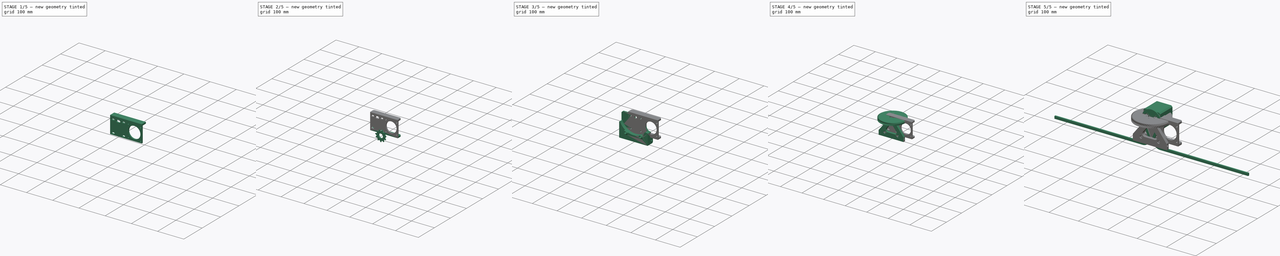
[diagram: build sequence overview — one tinted view per stage of 5, left to right]
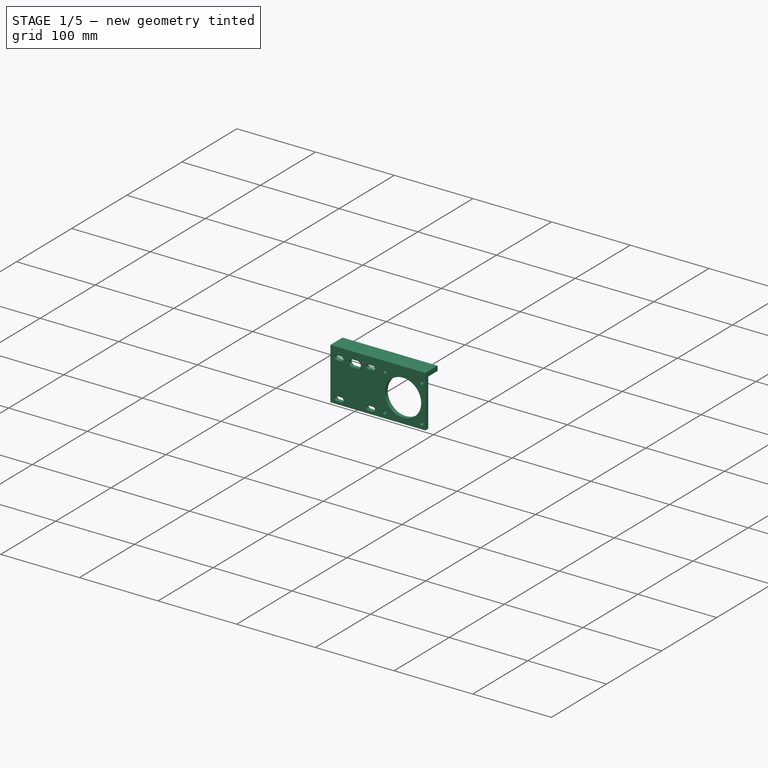
[diagram: stage 1 of 5 — iso view after this stage's code; geometry added in this stage tinted green]
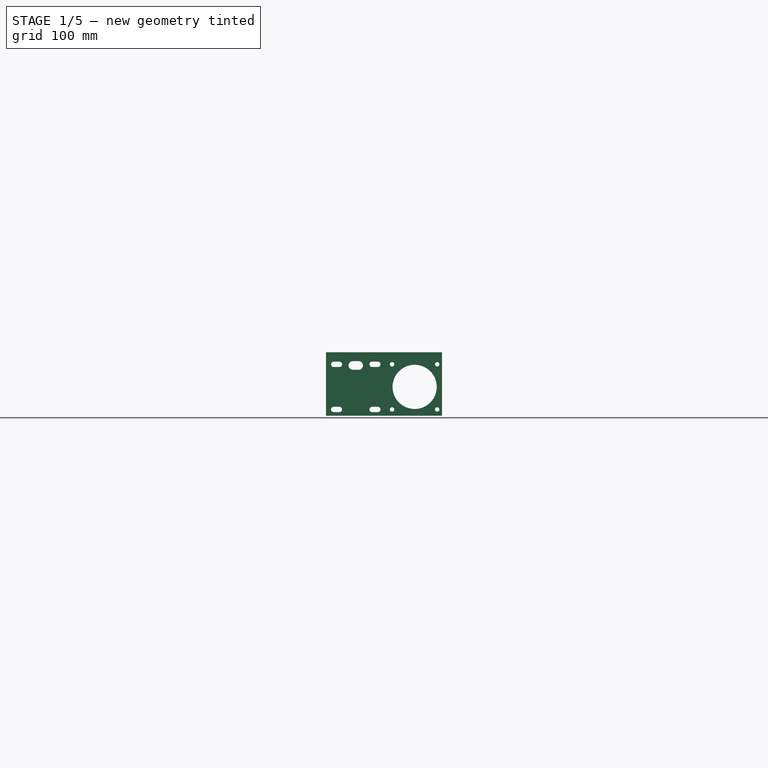
[diagram: stage 1 of 5 — front view after this stage's code; geometry added in this stage tinted green]
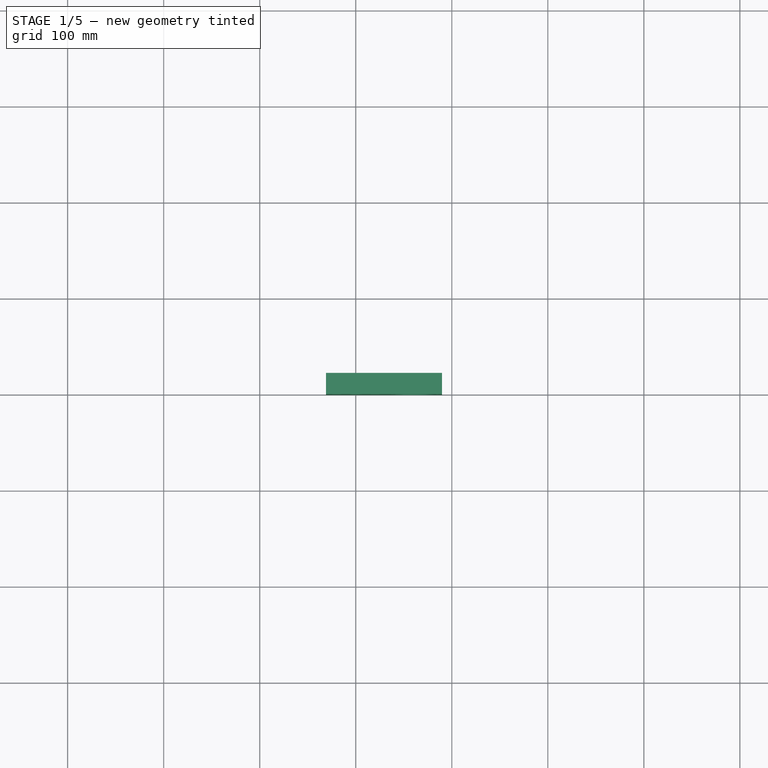
[diagram: stage 1 of 5 — top view after this stage's code; geometry added in this stage tinted green]
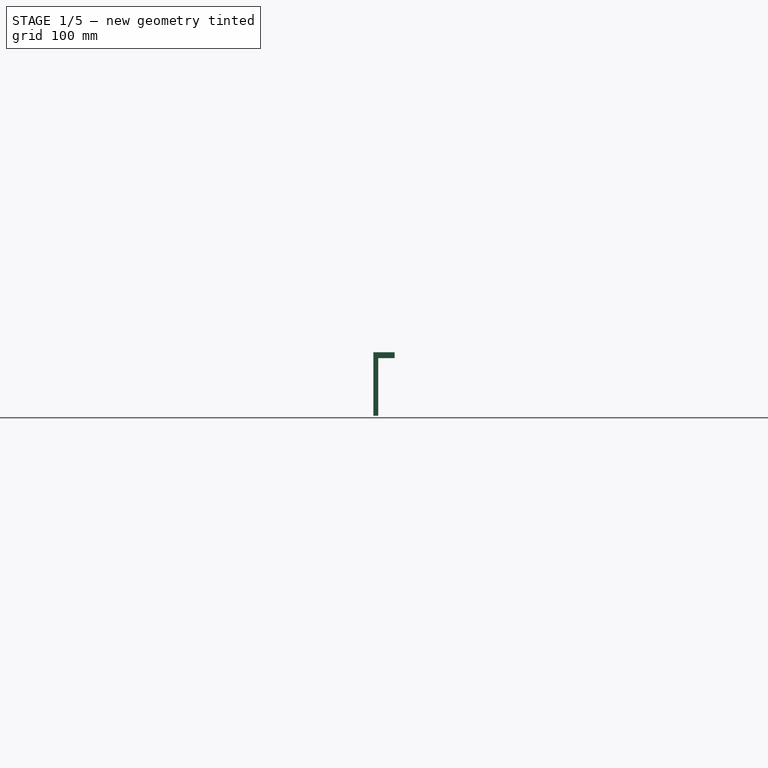
[diagram: stage 1 of 5 — right view after this stage's code; geometry added in this stage tinted green]
FCSTD DOCUMENT  (FreeCAD 1.0R39285 (Git))
Label: Bicycle-chain-drive-for-fabricatable-axis-6.0
License: Creative Commons Attribution-ShareAlike 4.0
LicenseURL: https://creativecommons.org/licenses/by-sa/4.0/
objects: Sketcher::SketchObject×45, PartDesign::Pad×18, PartDesign::Pocket×14, PartDesign::Chamfer×13, PartDesign::Body×12, PartDesign::Hole×7, PartDesign::Fillet×6, PartDesign::Groove×3, PartDesign::PolarPattern×3, App::Part×3, App::VarSet×2, PartDesign::FeaturePython×2, Part::Part2DObjectPython×2, Part::FeaturePython×2, PartDesign::Mirrored×1, PartDesign::Revolution×1, PartDesign::SubShapeBinder×1, PartDesign::FeatureBase×1
note: 307 computed .brp shape members not serialized (recipe doc carries the construction recipe); baked Part::Feature solids carry a one-line shape summary decoded from their .brp
EXTERNAL_REF file=Fabricatable-Axis-6.0.FCStd obj=Link

FEATURE [App::VarSet] VarSet
  Chain_wear_per_link = 0.15
  Clearence_for_gears = 5
FEATURE [PartDesign::FeaturePython] InvoluteGear  # WARN: FeaturePython — macro-defined, semantics opaque (R4)
  AttacherType = Attacher::AttachEngine3D
  Suppressed = false
  addendum_diameter = 115.5
  angular_backlash = 0
  axle_hole = false
  axle_holesize = 10
  backlash = 0
  clearance = 0.25
  double_helix = true
  head = 0
  head_fillet = 0
  height = 12
  helix_angle = 30
  module = 1.5
  num_teeth = 75
  numpoints = 20
  offset_hole = false
  offset_holeoffset = 10
  offset_holesize = 10
  pitch_diameter = 112.5
  pressure_angle = 20
  properties_from_tool = false
  reversed_backlash = false
  root_diameter = 108.75
  root_fillet = 0
  shift = 0
  simple = false
  transverse_pitch = 4.71239
  traverse_module = 1.5
  undercut = false
  version = 1.3.0
  expr: angular_backlash = backlash / pitch_diameter * 360 ° / pi
FEATURE [PartDesign::FeaturePython] InvoluteGear001  # WARN: FeaturePython — macro-defined, semantics opaque (R4)
  AttacherType = Attacher::AttachEngine3D
  Placement = pos=(0,0,-3) rot=(0,0,1;0rad)
  Suppressed = false
  addendum_diameter = 21
  angular_backlash = 0
  axle_hole = false
  axle_holesize = 10
  backlash = 0
  clearance = 0.25
  double_helix = true
  head = 0
  head_fillet = 0
  height = 18
  helix_angle = -30
  module = 1.5
  num_teeth = 12
  numpoints = 20
  offset_hole = false
  offset_holeoffset = 10
  offset_holesize = 10
  pitch_diameter = 18
  pressure_angle = 20
  properties_from_tool = false
  reversed_backlash = false
  root_diameter = 14.25
  root_fillet = 0
  shift = 0
  simple = false
  transverse_pitch = 4.71239
  traverse_module = 1.5
  undercut = false
  version = 1.3.0
  expr: .Placement.Base.z = -3 mm
  expr: angular_backlash = backlash / pitch_diameter * 360 ° / pi
  expr: height = InvoluteGear.height + 6 mm
  expr: helix_angle = -InvoluteGear.helix_angle
  expr: module = InvoluteGear.module
FEATURE [PartDesign::Body] Body004  label="Bicycle chain"
  AllowCompound = false
  Group = -> [Sketch007,Pad004,Mirrored]
  Origin = -> Origin004
  Placement = pos=(0,-20,0) rot=(0,0,1;0rad)
  Tip = -> Mirrored
  expr: .Placement.Base.y = <<Drive sprocket>>.Placement.Base.y - Pad001.Length / 2
FEATURE [Part::FeaturePython] Nut  label="M8-Nut"  # WARN: FeaturePython — macro-defined, semantics opaque (R4)
  Diameter = 9
  Invert = false
  LeftHanded = false
  MatchOuter = false
  OffsetAngle = 0
  Placement = pos=(0,12,0) rot=(1,0,0;1.5708rad)
  Thread = false
  Type = 31
FEATURE [Sketcher::SketchObject] Sketch011
  ArcFitTolerance = 1e-06
  AttachmentOffset = pos=(0,0,11.2) rot=(0,0,1;0rad)
  AttachmentSupport = -> [XY_Plane001]
  FullyConstrained = true
  MakeInternals = false
  MapMode = 5
  Placement = pos=(0,0,11.2) rot=(0,0,1;0rad)
  expr: .AttachmentOffset.Base.z = InvoluteGear.height - 0.8 mm
  sketch-geometry (5):
    g0: LineSegment StartX=-50 StartY=-50 StartZ=0 EndX=50 EndY=-50 EndZ=0
    g1: LineSegment StartX=50 StartY=-50 StartZ=0 EndX=50 EndY=50 EndZ=0
    g2: LineSegment StartX=50 StartY=50 StartZ=0 EndX=-50 EndY=50 EndZ=0
    g3: LineSegment StartX=-50 StartY=50 StartZ=0 EndX=-50 EndY=-50 EndZ=0
    g4: GeomPoint [constr] X=0 Y=0 Z=0
  constraints (12):
    c: Coincident(g0,g1)
    c: Coincident(g1,g2)
    c: Coincident(g2,g3)
    c: Coincident(g3,g0)
    c: Horizontal(g0)
    c: Horizontal(g2)
    c: Vertical(g1)
    c: Vertical(g3)
    c: Symmetric(g2,g0,g4)
    c: Distance(g1,g3) = 100
    c: Distance(g0,g2) = 100
    c: Coincident(g4,g-1)
FEATURE [PartDesign::Pocket] Pocket002
  BaseFeature = -> InvoluteGear001
  Direction = (0,0,-1)
  Length = 5
  Length2 = 5
  Placement = pos=(0,0,-3) rot=(0,0,1;0rad)
  Profile = -> Sketch011
  ReferenceAxis = -> Sketch011 [N_Axis]
  Refine = true
  Reversed = true
  Suppressed = false
  Type = 1
FEATURE [Sketcher::SketchObject] Sketch012
  ArcFitTolerance = 1e-06
  AttachmentSupport = -> [YZ_Plane001]
  FullyConstrained = true
  MakeInternals = false
  MapMode = 5
  Placement = pos=(0,0,0) rot=(0.57735,0.57735,0.57735;2.0944rad)
  expr: Constraints[12] = InvoluteGear001.root_diameter / 2 - 0.1 mm
  expr: Constraints[15] = 4 + 10
  expr: Constraints[16] = InvoluteGear001.addendum_diameter / 2 + 1 mm
  sketch-geometry (6):
    g0: LineSegment StartX=0 StartY=-12 StartZ=0 EndX=14 EndY=-12 EndZ=0
    g1: LineSegment StartX=14 StartY=-12 StartZ=0 EndX=14 EndY=-3.28364 EndZ=0
    g2: LineSegment StartX=14 StartY=-3.28364 StartZ=0 EndX=11.5 EndY=-3.28364 EndZ=0
    g3: LineSegment StartX=11.5 StartY=-3.28364 StartZ=0 EndX=7.025 EndY=-0.7 EndZ=0
    g4: LineSegment StartX=7.025 StartY=-0.7 StartZ=0 EndX=0 EndY=-0.7 EndZ=0
    g5: LineSegment StartX=0 StartY=-0.7 StartZ=0 EndX=0 EndY=-12 EndZ=0
  constraints (18):
    c: PointOnObject(g0,g-2)
    c: Horizontal(g0)
    c: Coincident(g0,g1)
    c: Vertical(g1)
    c: Coincident(g1,g2)
    c: Horizontal(g2)
    c: Coincident(g2,g3)
    c: Coincident(g3,g4)
    c: PointOnObject(g4,g-2)
    c: Coincident(g4,g5)
    c: Coincident(g5,g0)
    c: Horizontal(g4)
    c: DistanceX(g-2,g3) = 7.025
    c: Angle(g-1,g3) = 2.61799
    c: DistanceY(g-1,g3) = -0.7
    c: DistanceX(g-2,g0) = 14
    c: DistanceX(g-2,g2) = 11.5
    c: DistanceY(g-1,g0) = -12  'base'
FEATURE [PartDesign::Revolution] Revolution
  Angle = 360
  Angle2 = 60
  Axis = (0,0,1)
  Base = (0,0,0)
  BaseFeature = -> Pocket002
  Placement = pos=(0,0,-3) rot=(0,0,1;0rad)
  Profile = -> Sketch012
  ReferenceAxis = -> Sketch012 [V_Axis]
  Refine = true
  Reversed = true
  Suppressed = false
  Type = 0
FEATURE [Sketcher::SketchObject] Sketch040
  ArcFitTolerance = 1e-06
  AttachmentSupport = -> [XZ_Plane013]
  FullyConstrained = false
  MakeInternals = false
  MapMode = 5
  Placement = pos=(0,0,0) rot=(1,0,0;1.5708rad)
  expr: Constraints[0] = <<Pinion assembly>>.Placement.Base.z
  expr: Constraints[10] = Sketch039.Constraints.hole2z
  expr: Constraints[11] = Sketch039.Constraints.hole2x
  expr: Constraints[12] = Sketch039.Constraints.hole1x
  expr: Constraints[13] = Sketch039.Constraints.hole1z
  expr: Constraints[1] = <<Pinion assembly>>.Placement.Base.x
  sketch-geometry (40):
    g0: Circle [constr] CenterX=61.3149 CenterY=-22.3168 CenterZ=0 NormalX=0 NormalY=0 NormalZ=1 AngleXU=0 Radius=12.5992
    g1: LineSegment [constr] StartX=-20 StartY=1.18319 StartZ=0 EndX=-20 EndY=-45.8168 EndZ=0
    g2: LineSegment [constr] StartX=-20 StartY=-45.8168 StartZ=0 EndX=20 EndY=-45.8168 EndZ=0
    g3: LineSegment [constr] StartX=20 StartY=-45.8168 StartZ=0 EndX=20 EndY=1.18319 EndZ=0
    g4: LineSegment [constr] StartX=20 StartY=1.18319 StartZ=0 EndX=-20 EndY=1.18319 EndZ=0
    g5: ArcOfCircle CenterX=-23 CenterY=1.18319 CenterZ=0 NormalX=0 NormalY=0 NormalZ=1 AngleXU=0 Radius=2.75 StartAngle=1.5708 EndAngle=4.71239
    g6: ArcOfCircle CenterX=-17 CenterY=1.18319 CenterZ=0 NormalX=0 NormalY=0 NormalZ=1 AngleXU=0 Radius=2.75 StartAngle=4.71239 EndAngle=7.85398
    g7: LineSegment StartX=-23 StartY=3.93319 StartZ=0 EndX=-17 EndY=3.93319 EndZ=0
    g8: LineSegment StartX=-23 StartY=-1.56681 StartZ=0 EndX=-17 EndY=-1.56681 EndZ=0
    g9: ArcOfCircle CenterX=17 CenterY=1.18319 CenterZ=0 NormalX=0 NormalY=0 NormalZ=1 AngleXU=0 Radius=2.75 StartAngle=1.5708 EndAngle=4.71239
    g10: ArcOfCircle CenterX=23 CenterY=1.18319 CenterZ=0 NormalX=0 NormalY=0 NormalZ=1 AngleXU=0 Radius=2.75 StartAngle=4.71239 EndAngle=7.85398
    g11: LineSegment StartX=17 StartY=3.93319 StartZ=0 EndX=23 EndY=3.93319 EndZ=0
    g12: LineSegment StartX=17 StartY=-1.56681 StartZ=0 EndX=23 EndY=-1.56681 EndZ=0
    g13: ArcOfCircle CenterX=-23 CenterY=-45.8168 CenterZ=0 NormalX=0 NormalY=0 NormalZ=1 AngleXU=0 Radius=2.75 StartAngle=1.5708 EndAngle=4.71239
    g14: ArcOfCircle CenterX=-17 CenterY=-45.8168 CenterZ=0 NormalX=0 NormalY=0 NormalZ=1 AngleXU=0 Radius=2.75 StartAngle=4.71239 EndAngle=7.85398
    g15: LineSegment StartX=-23 StartY=-43.0668 StartZ=0 EndX=-17 EndY=-43.0668 EndZ=0
    g16: LineSegment StartX=-23 StartY=-48.5668 StartZ=0 EndX=-17 EndY=-48.5668 EndZ=0
    g17: ArcOfCircle CenterX=17 CenterY=-45.8168 CenterZ=0 NormalX=0 NormalY=0 NormalZ=1 AngleXU=0 Radius=2.75 StartAngle=1.5708 EndAngle=4.71239
    g18: ArcOfCircle CenterX=23 CenterY=-45.8168 CenterZ=0 NormalX=0 NormalY=0 NormalZ=1 AngleXU=0 Radius=2.75 StartAngle=4.71239 EndAngle=7.85398
    g19: LineSegment StartX=17 StartY=-43.0668 StartZ=0 EndX=23 EndY=-43.0668 EndZ=0
    g20: LineSegment StartX=17 StartY=-48.5668 StartZ=0 EndX=23 EndY=-48.5668 EndZ=0
    g21: Circle CenterX=61.3149 CenterY=-22.3168 CenterZ=0 NormalX=0 NormalY=0 NormalZ=1 AngleXU=0 Radius=23
    g22: LineSegment [constr] StartX=37.8149 StartY=-45.8168 StartZ=0 EndX=84.8149 EndY=-45.8168 EndZ=0
    g23: LineSegment [constr] StartX=84.8149 StartY=-45.8168 StartZ=0 EndX=84.8149 EndY=1.18319 EndZ=0
    g24: LineSegment [constr] StartX=84.8149 StartY=1.18319 StartZ=0 EndX=37.8149 EndY=1.18319 EndZ=0
    g25: LineSegment [constr] StartX=37.8149 StartY=1.18319 StartZ=0 EndX=37.8149 EndY=-45.8168 EndZ=0
    g26: GeomPoint [constr] X=61.3149 Y=-22.3168 Z=0
    g27: LineSegment [constr] StartX=0 StartY=-22.3168 StartZ=0 EndX=61.3149 EndY=-22.3168 EndZ=0
    g28: LineSegment StartX=-31 StartY=7.68319 StartZ=0 EndX=-31 EndY=-52.3168 EndZ=0
    g29: LineSegment StartX=-31 StartY=-52.3168 StartZ=0 EndX=89.8149 EndY=-52.3168 EndZ=0
    g30: LineSegment StartX=89.8149 StartY=-52.3168 StartZ=0 EndX=89.8149 EndY=7.68319 EndZ=0
    g31: LineSegment StartX=89.8149 StartY=7.68319 StartZ=0 EndX=-31 EndY=7.68319 EndZ=0
    g32: Circle CenterX=37.8149 CenterY=1.18319 CenterZ=0 NormalX=0 NormalY=0 NormalZ=1 AngleXU=0 Radius=2.3
    g33: Circle CenterX=84.8149 CenterY=1.18319 CenterZ=0 NormalX=0 NormalY=0 NormalZ=1 AngleXU=0 Radius=2.3
    g34: Circle CenterX=84.8149 CenterY=-45.8168 CenterZ=0 NormalX=0 NormalY=0 NormalZ=1 AngleXU=0 Radius=2.3
    g35: Circle CenterX=37.8149 CenterY=-45.8168 CenterZ=0 NormalX=0 NormalY=0 NormalZ=1 AngleXU=0 Radius=2.3
    g36: ArcOfCircle CenterX=-3 CenterY=0 CenterZ=0 NormalX=0 NormalY=0 NormalZ=1 AngleXU=0 Radius=4.5 StartAngle=1.5708 EndAngle=4.71239
    g37: ArcOfCircle CenterX=3 CenterY=0 CenterZ=0 NormalX=0 NormalY=0 NormalZ=1 AngleXU=0 Radius=4.5 StartAngle=4.71239 EndAngle=7.85398
    g38: LineSegment StartX=-3 StartY=4.5 StartZ=0 EndX=3 EndY=4.5 EndZ=0
    g39: LineSegment StartX=-3 StartY=-4.5 StartZ=0 EndX=3 EndY=-4.5 EndZ=0
  constraints (95):
    c: DistanceY(g-1,g0) = -22.3168
    c: DistanceX(g-2,g0) = 61.3149
    c: Coincident(g1,g2)
    c: Coincident(g2,g3)
    c: Coincident(g3,g4)
    c: Coincident(g4,g1)
    c: Vertical(g1)
    c: Vertical(g3)
    c: Horizontal(g2)
    c: Horizontal(g4)
    c: DistanceY(g-1,g1) = 1.18319
    c: DistanceX(g-2,g1) = -20
    c: DistanceX(g-2,g2) = 20
    c: DistanceY(g-1,g2) = -45.8168
    c: Tangent(g5,g7) = 1.5708
    c: Tangent(g5,g8) = -1.5708
    c: Tangent(g6,g7) = 1.5708
    c: Tangent(g6,g8) = -1.5708
    c: Equal(g5,g6)
    c: Tangent(g9,g11) = 1.5708
    c: Tangent(g9,g12) = -1.5708
    c: Tangent(g10,g11) = 1.5708
    c: Tangent(g10,g12) = -1.5708
    c: Equal(g9,g10)
    c: Tangent(g13,g15) = 1.5708
    c: Tangent(g13,g16) = -1.5708
    c: Tangent(g14,g15) = 1.5708
    c: Tangent(g14,g16) = -1.5708
    c: Equal(g13,g14)
    c: Tangent(g17,g19) = 1.5708
    c: Tangent(g17,g20) = -1.5708
    c: Tangent(g18,g19) = 1.5708
    c: Tangent(g18,g20) = -1.5708
    c: Equal(g17,g18)
    c: Equal(g14,g6)
    c: Equal(g14,g10)
    c: Equal(g14,g18)
    c: Diameter(g14) = 5.5
    c: Symmetric(g17,g18,g3)
    c: Symmetric(g14,g13,g1)
    c: Symmetric(g5,g6,g1)
    c: Symmetric(g9,g10,g3)
    c: PointOnObject(g9,g4)
    c: PointOnObject(g6,g4)
    c: PointOnObject(g14,g2)
    c: PointOnObject(g17,g2)
    c: Equal(g16,g20)
    c: Equal(g20,g12)
    c: Equal(g12,g8)
    c: Distance(g11) = 6
    c: Coincident(g21,g0)
    c: Coincident(g22,g23)
    c: Coincident(g23,g24)
    c: Coincident(g24,g25)
    c: Coincident(g25,g22)
    c: Horizontal(g22)
    c: Horizontal(g24)
    c: Vertical(g23)
    c: Vertical(g25)
    c: Symmetric(g24,g22,g26)
    c: Coincident(g26,g0)
    c: Equal(g24,g23)
    c: Distance(g24) = 47
    c: Diameter(g21) = 46
    c: PointOnObject(g27,g-2)
    c: Coincident(g27,g0)
    c: Horizontal(g27)
    c: Coincident(g28,g29)
    c: Coincident(g29,g30)
    c: Coincident(g30,g31)
    c: Coincident(g31,g28)
    c: Vertical(g28)
    c: Horizontal(g29)
    c: Horizontal(g31)
    c: Symmetric(g29,g30,g27)
    c: Distance(g30) = 60
    c: Distance(g0,g30) = 28.5
    c: Coincident(g32,g24)
    c: Coincident(g33,g23)
    c: Coincident(g34,g22)
    c: Coincident(g35,g22)
    c: Equal(g35,g32)
    c: Equal(g35,g33)
    c: Equal(g35,g34)
    c: Diameter(g35) = 4.6
    c: Distance(g5,g28) = 8
    c: Tangent(g36,g38) = 1.5708
    c: Tangent(g36,g39) = -1.5708
    c: Tangent(g37,g38) = 1.5708
    c: Tangent(g37,g39) = -1.5708
    c: Equal(g36,g37)
    c: Symmetric(g37,g36,g-2)
    c: PointOnObject(g36,g-1)
    c: Equal(g38,g11)
    c: Diameter(g37) = 9
FEATURE [PartDesign::Pad] Pad015
  Direction = (0,-1,2e-16)
  Length = 5
  Length2 = 10
  Placement = pos=(0,0,0) rot=(1,0,0;1.5708rad)
  Profile = -> Sketch040
  ReferenceAxis = -> Sketch040 [N_Axis]
  Refine = true
  Reversed = true
  Suppressed = false
  Type = 0
FEATURE [PartDesign::FeatureBase] Clone001
  BaseFeature = -> Body001
  Placement = pos=(0,0,0) rot=(1,0,0;1.5708rad)
  Suppressed = false
FEATURE [Sketcher::SketchObject] Sketch041
  ArcFitTolerance = 1e-06
  AttachmentSupport = -> [XZ_Plane014]
  FullyConstrained = true
  MakeInternals = false
  MapMode = 5
  Placement = pos=(0,0,0) rot=(1,0,0;1.5708rad)
  sketch-geometry (1):
    g0: Circle CenterX=0 CenterY=0 CenterZ=0 NormalX=0 NormalY=0 NormalZ=1 AngleXU=0 Radius=4.05
  constraints (2):
    c: Diameter(g0) = 8.1
    c: Coincident(g0,g-1)
FEATURE [PartDesign::Pocket] Pocket012
  BaseFeature = -> Clone001
  Direction = (0,1,-2e-16)
  Length = 20
  Length2 = 9
  Midplane = true
  Placement = pos=(0,0,0) rot=(1,0,0;1.5708rad)
  Profile = -> Sketch041
  ReferenceAxis = -> Sketch041 [N_Axis]
  Refine = true
  Suppressed = false
  Type = 4
FEATURE [PartDesign::Chamfer] Chamfer008
  Angle = 45
  Base = -> Pocket012 [Face5]
  BaseFeature = -> Pocket012
  ChamferType = 0
  FlipDirection = false
  Placement = pos=(0,0,0) rot=(1,0,0;1.5708rad)
  Refine = true
  Size = 2
  Size2 = 1
  SupportTransform = false
  Suppressed = false
  UseAllEdges = false
FEATURE [Sketcher::SketchObject] Sketch042
  ArcFitTolerance = 1e-06
  AttachmentSupport = -> [XY_Plane014]
  FullyConstrained = true
  MakeInternals = false
  MapMode = 5
  sketch-geometry (1):
    g0: Circle CenterX=0 CenterY=7.5 CenterZ=0 NormalX=0 NormalY=0 NormalZ=1 AngleXU=0 Radius=2.3
  constraints (3):
    c: Diameter(g0) = 4.6
    c: PointOnObject(g0,g-2)
    c: DistanceY(g-1,g0) = 7.5
FEATURE [PartDesign::Pocket] Pocket013
  BaseFeature = -> Chamfer008
  Direction = (0,0,-1)
  Length = 5
  Length2 = 5
  Placement = pos=(0,0,0) rot=(1,0,0;1.5708rad)
  Profile = -> Sketch042
  ReferenceAxis = -> Sketch042 [N_Axis]
  Refine = true
  Suppressed = false
  Type = 1
FEATURE [PartDesign::Chamfer] Chamfer009
  Angle = 45
  Base = -> Pocket013 [Face4]
  BaseFeature = -> Pocket013
  ChamferType = 0
  FlipDirection = false
  Placement = pos=(0,0,0) rot=(1,0,0;1.5708rad)
  Refine = true
  Size = 0.8
  Size2 = 1
  SupportTransform = false
  Suppressed = false
  UseAllEdges = false
FEATURE [PartDesign::PolarPattern] PolarPattern002
  Angle = 360
  Axis = -> Y_Axis014
  BaseFeature = -> Chamfer009
  Mode = 0
  Occurrences = 3
  Offset = 120
  Originals = -> [Pocket013,Chamfer009]
  Placement = pos=(0,0,0) rot=(1,0,0;1.5708rad)
  Refine = true
  Suppressed = false
  TransformMode = 0
FEATURE [PartDesign::Chamfer] Chamfer010
  Angle = 45
  Base = -> PolarPattern002 [Face4]
  BaseFeature = -> PolarPattern002
  ChamferType = 0
  FlipDirection = false
  Placement = pos=(0,0,0) rot=(1,0,0;1.5708rad)
  Refine = true
  Size = 0.4
  Size2 = 1
  SupportTransform = false
  Suppressed = false
  UseAllEdges = false
FEATURE [PartDesign::Body] Body007  label="Backplate"
  AllowCompound = false
  Group = -> [Sketch024,Pad009,Sketch027,Sketch028,Pad010,Fillet,Fillet001,Pocket007,Sketch030,Pad011,Chamfer002,Sketch031,Pad012,Sketch032,Pocket008,Sketch033,Pocket009,Sketch038,Pocket011,Sketch039,Hole006,Chamfer004,Fillet004,Chamfer005]
  Origin = -> Origin009
  Placement = pos=(0,5,0) rot=(0,0,1;0rad)
  Tip = -> Chamfer005
  expr: .Placement.Base.y = VarSet.Clearence_for_gears
FEATURE [Sketcher::SketchObject] Sketch043
  ArcFitTolerance = 1e-06
  AttachmentSupport = -> [Pad015]
  ExternalGeometry = -> [Pad015]
  FullyConstrained = true
  MakeInternals = false
  MapMode = 5
  Placement = pos=(0,3.4e-15,7.68319) rot=(0,0,1;3.14159rad)
  sketch-geometry (4):
    g0: LineSegment StartX=-89.8149 StartY=0 StartZ=0 EndX=-89.8149 EndY=-22 EndZ=0
    g1: LineSegment StartX=-89.8149 StartY=-22 StartZ=0 EndX=31 EndY=-22 EndZ=0
    g2: LineSegment StartX=31 StartY=-22 StartZ=0 EndX=31 EndY=0 EndZ=0
    g3: LineSegment StartX=31 StartY=0 StartZ=0 EndX=-89.8149 EndY=0 EndZ=0
  constraints (10):
    c: Coincident(g0,g1)
    c: Coincident(g1,g2)
    c: Coincident(g2,g3)
    c: Coincident(g3,g0)
    c: Vertical(g0)
    c: Vertical(g2)
    c: Horizontal(g1)
    c: Coincident(g0,g-3)
    c: Coincident(g-3,g2)
    c: DistanceY(g-1,g1) = -22
FEATURE [PartDesign::Pad] Pad016
  BaseFeature = -> Pad015
  Direction = (0,0,1)
  Length = 6
  Length2 = 10
  Placement = pos=(0,0,0) rot=(1,0,0;1.5708rad)
  Profile = -> Sketch043
  ReferenceAxis = -> Sketch043 [N_Axis]
  Refine = true
  Suppressed = false
  Type = 0
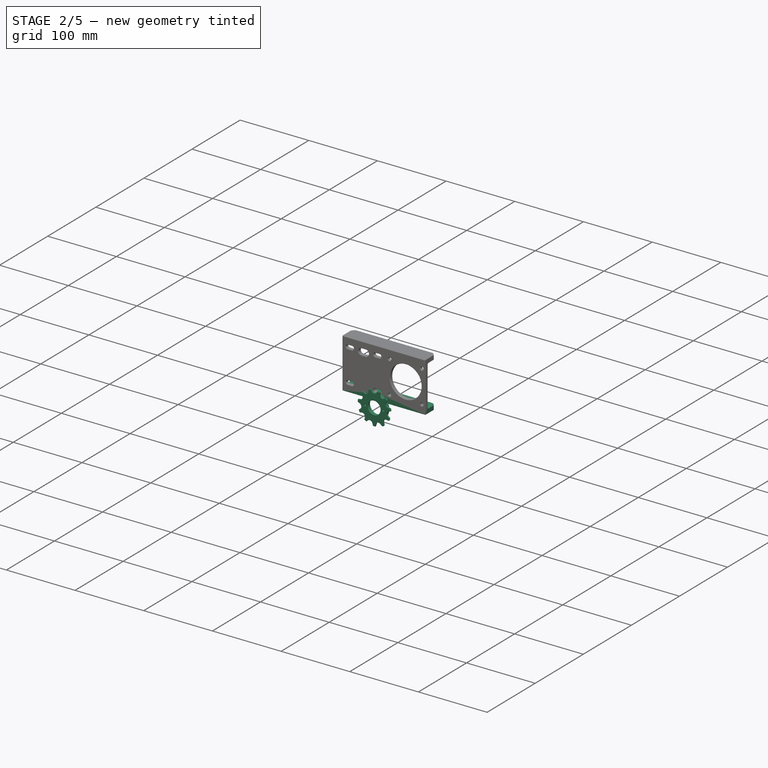
[diagram: stage 2 of 5 — iso view after this stage's code; geometry added in this stage tinted green]
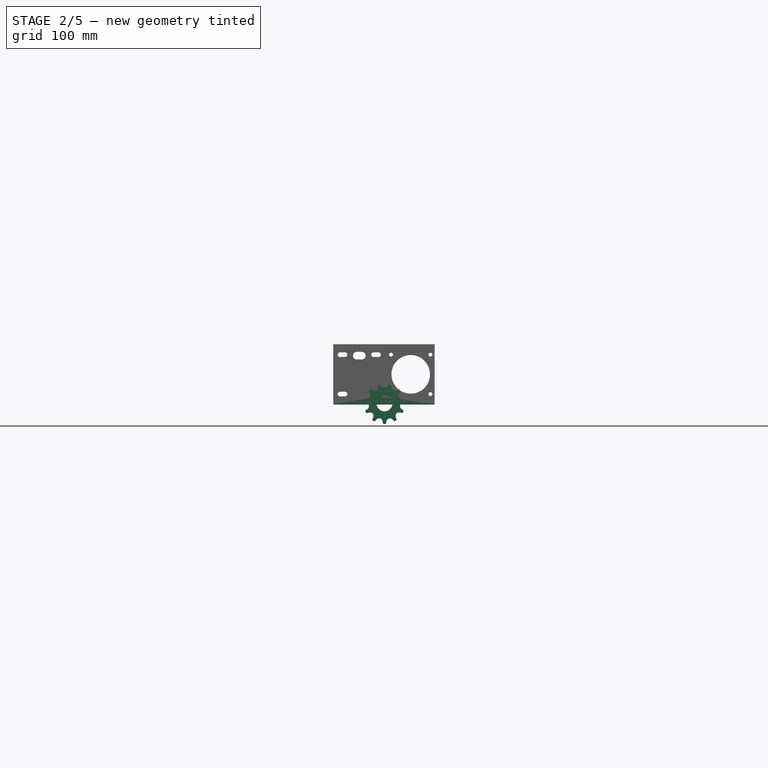
[diagram: stage 2 of 5 — front view after this stage's code; geometry added in this stage tinted green]
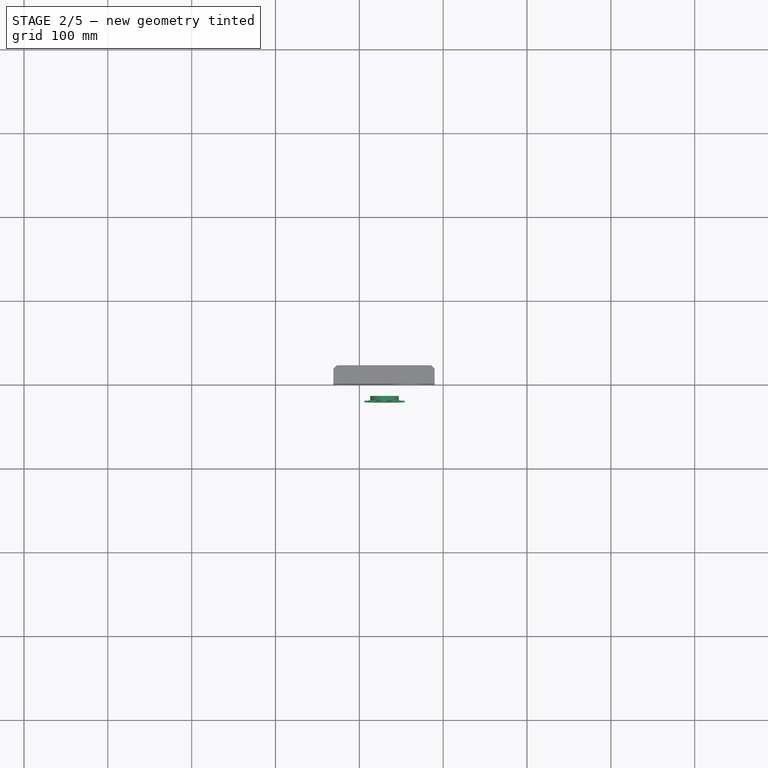
[diagram: stage 2 of 5 — top view after this stage's code; geometry added in this stage tinted green]
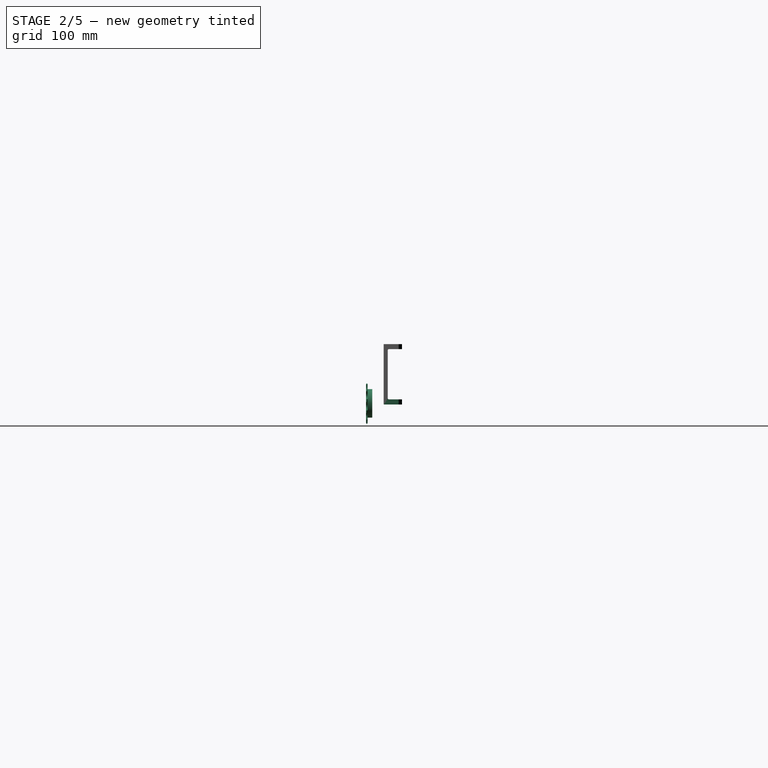
[diagram: stage 2 of 5 — right view after this stage's code; geometry added in this stage tinted green]
FEATURE [Sketcher::SketchObject] Sketch
  ArcFitTolerance = 1e-06
  AttachmentSupport = -> [XY_Plane]
  FullyConstrained = true
  MakeInternals = false
  MapMode = 5
  sketch-geometry (1):
    g0: Circle CenterX=0 CenterY=0 CenterZ=0 NormalX=0 NormalY=0 NormalZ=1 AngleXU=0 Radius=11.13
  constraints (2):
    c: Coincident(g0,g-1)
    c: Diameter(g0) = 22.26
FEATURE [Part::Part2DObjectPython] Sprocket  label="Sprocket001"  # Draft 2D object (typed FeaturePython)
  NumberOfTeeth = 14
  Pitch = 12.85
  RollerDiameter = 7.94
  SprocketReference = 14
  Thickness = 2.79
  expr: Pitch = 12.7 mm + VarSet.Chain_wear_per_link
FEATURE [Sketcher::SketchObject] Sketch001
  ArcFitTolerance = 1e-06
  AttachmentSupport = -> [XY_Plane002]
  FullyConstrained = true
  MakeInternals = false
  MapMode = 5
  expr: Constraints[1] = Sprocket.NumberOfTeeth * Sprocket.Pitch / pi - Sprocket.RollerDiameter - 3 mm
  sketch-geometry (1):
    g0: Circle CenterX=0 CenterY=0 CenterZ=0 NormalX=0 NormalY=0 NormalZ=1 AngleXU=0 Radius=23.162
  constraints (2):
    c: Coincident(g0,g-1)
    c: Diameter(g0) = 46.3239
FEATURE [PartDesign::Pad] Pad
  Direction = (0,0,1)
  Length = 7
  Length2 = 10
  Profile = -> Sketch001
  ReferenceAxis = -> Sketch001 [N_Axis]
  Refine = true
  Reversed = true
  Suppressed = false
  Type = 0
FEATURE [Sketcher::SketchObject] Sketch004
  ArcFitTolerance = 1e-06
  AttachmentSupport = -> [XY_Plane003]
  FullyConstrained = true
  MakeInternals = false
  MapMode = 5
  expr: Constraints[1] = Sprocket001.NumberOfTeeth * Sprocket001.Pitch / pi - Sprocket001.RollerDiameter - 3 mm
  sketch-geometry (1):
    g0: Circle CenterX=0 CenterY=0 CenterZ=0 NormalX=0 NormalY=0 NormalZ=1 AngleXU=0 Radius=17.0266
  constraints (2):
    c: Coincident(g0,g-1)
    c: Diameter(g0) = 34.0531
FEATURE [PartDesign::Pad] Pad002
  Direction = (0,0,1)
  Length = 5.5
  Length2 = 10
  Profile = -> Sketch004
  ReferenceAxis = -> Sketch004 [N_Axis]
  Refine = true
  Reversed = true
  Suppressed = false
  Type = 0
FEATURE [Sketcher::SketchObject] Sketch005  label="Diameter reference001"
  ArcFitTolerance = 1e-06
  AttachmentSupport = -> [XY_Plane003]
  FullyConstrained = true
  MakeInternals = false
  MapMode = 5
  expr: Constraints[0] = Sprocket001.NumberOfTeeth * Sprocket001.Pitch / pi
  sketch-geometry (1):
    g0: Circle CenterX=0 CenterY=0 CenterZ=0 NormalX=0 NormalY=0 NormalZ=1 AngleXU=0 Radius=22.4966
  constraints (2):
    c: Diameter(g0) = 44.9931
    c: Coincident(g0,g-1)
FEATURE [Sketcher::SketchObject] Sketch006
  ArcFitTolerance = 1e-06
  AttachmentOffset = pos=(-22.4966,1,0) rot=(0,0,1;0rad)
  AttachmentSupport = -> [YZ_Plane003]
  FullyConstrained = true
  MakeInternals = false
  MapMode = 5
  Placement = pos=(0,-22.4966,1) rot=(0.57735,0.57735,0.57735;2.0944rad)
  expr: .AttachmentOffset.Base.x = -Sprocket001.NumberOfTeeth * Sprocket001.Pitch / pi / 2
  expr: .AttachmentOffset.Base.y = Pad003.Length / 2
  expr: Constraints[6] = Pad003.Length
  sketch-geometry (6):
    g0: LineSegment StartX=-12 StartY=1 StartZ=0 EndX=-0.786074 EndY=1 EndZ=0
    g1: LineSegment StartX=-2 StartY=-0.15 StartZ=0 EndX=-0.786074 EndY=-1 EndZ=0
    g2: LineSegment StartX=-0.786074 StartY=-1 StartZ=0 EndX=-12 EndY=-1 EndZ=0
    g3: LineSegment StartX=-12 StartY=-1 StartZ=0 EndX=-12 EndY=1 EndZ=0
    g4: LineSegment StartX=-2 StartY=-0.15 StartZ=0 EndX=-2 EndY=0.15 EndZ=0
    g5: LineSegment StartX=-2 StartY=0.15 StartZ=0 EndX=-0.786074 EndY=1 EndZ=0
  constraints (15):
    c: Horizontal(g0)
    c: Coincident(g1,g2)
    c: Coincident(g2,g3)
    c: Coincident(g3,g0)
    c: Symmetric(g2,g0,g-1)
    c: Angle(g1,g-1) = 0.610865
    c: Distance(g3) = 2
    c: Symmetric(g1,g0,g-1)
    c: DistanceX(g-2,g1) = -2  'tip_offset'
    c: Coincident(g4,g1)
    c: Coincident(g5,g4)
    c: Coincident(g5,g0)
    c: Symmetric(g4,g1,g-1)
    c: Distance(g4) = 0.3
    c: DistanceX(g-2,g2) = -12
FEATURE [Part::Part2DObjectPython] Sprocket001  label="Sprocket002"  # Draft 2D object (typed FeaturePython)
  NumberOfTeeth = 11
  Pitch = 12.85
  RollerDiameter = 7.94
  SprocketReference = 14
  Thickness = 2.79
  expr: Pitch = 12.7 mm + VarSet.Chain_wear_per_link
FEATURE [PartDesign::Pad] Pad003
  BaseFeature = -> Pad002
  Direction = (0,0,1)
  Length = 2
  Length2 = 10
  Profile = -> Sprocket001
  ReferenceAxis = -> Sprocket001 [N_Axis]
  Refine = true
  Suppressed = false
  Type = 0
FEATURE [PartDesign::Groove] Groove001
  Angle = 360
  Angle2 = 60
  Axis = (1e-16,1e-16,1)
  Base = (0,0,0)
  BaseFeature = -> Pad003
  Profile = -> Sketch006
  ReferenceAxis = -> Z_Axis003
  Refine = true
  Reversed = true
  Suppressed = false
  Type = 0
FEATURE [Sketcher::SketchObject] Sketch008
  ArcFitTolerance = 1e-06
  AttachmentOffset = pos=(0,0,-5.5) rot=(0,0,1;0rad)
  AttachmentSupport = -> [XY_Plane003]
  FullyConstrained = true
  MakeInternals = false
  MapMode = 5
  Placement = pos=(0,0,-5.5) rot=(0,0,1;0rad)
  expr: .AttachmentOffset.Base.z = -Pad002.Length
  sketch-geometry (1):
    g0: Circle CenterX=0 CenterY=0 CenterZ=0 NormalX=0 NormalY=0 NormalZ=1 AngleXU=0 Radius=11.13
  constraints (2):
    c: Coincident(g0,g-1)
    c: Diameter(g0) = 22.26
FEATURE [PartDesign::Pocket] Pocket
  BaseFeature = -> Groove001
  Direction = (0,0,-1)
  Length = 7
  Length2 = 5
  Profile = -> Sketch008
  ReferenceAxis = -> Sketch008 [N_Axis]
  Refine = true
  Reversed = true
  Suppressed = false
  Type = 0
FEATURE [Sketcher::SketchObject] Sketch009
  ArcFitTolerance = 1e-06
  AttachmentSupport = -> [XY_Plane003]
  FullyConstrained = true
  MakeInternals = false
  MapMode = 5
  sketch-geometry (1):
    g0: Circle CenterX=0 CenterY=0 CenterZ=0 NormalX=0 NormalY=0 NormalZ=1 AngleXU=0 Radius=9.5
  constraints (2):
    c: Diameter(g0) = 19
    c: Coincident(g0,g-1)
FEATURE [PartDesign::Pocket] Pocket001
  BaseFeature = -> Pocket
  Direction = (0,0,-1)
  Length = 5
  Length2 = 5
  Midplane = true
  Profile = -> Sketch009
  ReferenceAxis = -> Sketch009 [N_Axis]
  Refine = true
  Suppressed = false
  Type = 1
FEATURE [Sketcher::SketchObject] Sketch010
  ArcFitTolerance = 1e-06
  AttachmentOffset = pos=(0,0,-5.5) rot=(0,0,1;0rad)
  AttachmentSupport = -> [XY_Plane003]
  FullyConstrained = true
  MakeInternals = false
  MapMode = 5
  Placement = pos=(0,0,-5.5) rot=(0,0,1;0rad)
  expr: .AttachmentOffset.Base.z = -Pad002.Length
  expr: Constraints[4] = 22 / 2 + 3 / 2 + 0.8
  sketch-geometry (2):
    g0: Circle CenterX=-13.3 CenterY=0 CenterZ=0 NormalX=0 NormalY=0 NormalZ=1 AngleXU=0 Radius=1.5
    g1: Circle CenterX=13.3 CenterY=0 CenterZ=0 NormalX=0 NormalY=0 NormalZ=1 AngleXU=0 Radius=1.5
  constraints (5):
    c: PointOnObject(g0,g-1)
    c: Symmetric(g1,g0,g-2)
    c: Equal(g1,g0)
    c: Diameter(g1) = 3
    c: DistanceX(g-2,g1) = 13.3
FEATURE [PartDesign::Hole] Hole
  BaseFeature = -> Pocket001
  CustomThreadClearance = 0
  Depth = 25
  DepthType = 0
  Diameter = 2.7
  DrillForDepth = false
  DrillPoint = 1
  DrillPointAngle = 118
  HoleCutCountersinkAngle = 90
  HoleCutCustomValues = false
  HoleCutDepth = 0
  HoleCutDiameter = 4.5
  HoleCutType = 2
  ModelThread = false
  Profile = -> Sketch010
  Refine = true
  Reversed = true
  Suppressed = false
  Tapered = false
  TaperedAngle = 90
  ThreadClass = 0
  ThreadDepth = 25
  ThreadDepthType = 0
  ThreadDirection = 0
  ThreadFit = 0
  ThreadSize = 0
  ThreadType = 0
  Threaded = false
  UseCustomThreadClearance = false
FEATURE [Sketcher::SketchObject] Sketch029
  ArcFitTolerance = 1e-06
  AttachmentSupport = -> [YZ_Plane003]
  FullyConstrained = true
  MakeInternals = false
  MapMode = 5
  Placement = pos=(0,0,0) rot=(0.57735,0.57735,0.57735;2.0944rad)
FEATURE [PartDesign::Body] Body003  label="Idler sprocket1"
  AllowCompound = false
  Group = -> [Sprocket001,Sketch004,Pad002,Pad003,Sketch005,Sketch006,Groove001,Sketch008,Pocket,Sketch009,Pocket001,Sketch010,Hole,Sketch029]
  Origin = -> Origin003
  Placement = pos=(-30,-19,-57) rot=(1,0,0;1.5708rad)
  Tip = -> Hole
  expr: .Placement.Base.y = -InvoluteGear.height - Pad.Length
FEATURE [Part::FeaturePython] Clone  label="Idler sprocket2"  # Draft clone (typed FeaturePython)
  AttacherType = Attacher::AttachEngine3D
  Fuse = false
  Objects = -> [Body003]
  Placement = pos=(30,-19,-57) rot=(1,0,0;1.5708rad)
  Scale = (1,1,1)
  expr: .Placement.Base.x = -<<Idler sprocket1>>.Placement.Base.x
  expr: .Placement.Base.y = <<Idler sprocket1>>.Placement.Base.y
  expr: .Placement.Base.z = <<Idler sprocket1>>.Placement.Base.z
FEATURE [Sketcher::SketchObject] Sketch044
  ArcFitTolerance = 1e-06
  AttachmentSupport = -> [Pad016]
  ExternalGeometry = -> [Pad016]
  FullyConstrained = true
  MakeInternals = false
  MapMode = 5
  Placement = pos=(0,-2.3e-14,-52.3168) rot=(1,0,0;3.14159rad)
  sketch-geometry (4):
    g0: LineSegment StartX=-31 StartY=0 StartZ=0 EndX=-31 EndY=-22 EndZ=0
    g1: LineSegment StartX=-31 StartY=-22 StartZ=0 EndX=89.8149 EndY=-22 EndZ=0
    g2: LineSegment StartX=89.8149 StartY=-22 StartZ=0 EndX=89.8149 EndY=0 EndZ=0
    g3: LineSegment StartX=89.8149 StartY=0 StartZ=0 EndX=-31 EndY=0 EndZ=0
  constraints (9):
    c: Coincident(g0,g1)
    c: Coincident(g1,g2)
    c: Coincident(g2,g3)
    c: Coincident(g3,g0)
    c: Vertical(g0)
    c: Horizontal(g1)
    c: Coincident(g0,g-3)
    c: Coincident(g2,g-3)
    c: Coincident(g1,g-4)
FEATURE [PartDesign::Pad] Pad017
  BaseFeature = -> Pad016
  Direction = (0,0,-1)
  Length = 6
  Length2 = 10
  Placement = pos=(0,0,0) rot=(1,0,0;1.5708rad)
  Profile = -> Sketch044
  ReferenceAxis = -> Sketch044 [N_Axis]
  Refine = true
  Suppressed = false
  Type = 0
  expr: Length = Pad016.Length
FEATURE [PartDesign::Chamfer] Chamfer011
  Angle = 45
  Base = -> Pad017 [Edge2,Edge4]
  BaseFeature = -> Pad017
  ChamferType = 0
  FlipDirection = false
  Placement = pos=(0,0,0) rot=(1,0,0;1.5708rad)
  Refine = true
  Size = 1
  Size2 = 1
  SupportTransform = false
  Suppressed = false
  UseAllEdges = false
FEATURE [PartDesign::Chamfer] Chamfer012
  Angle = 45
  Base = -> Chamfer011 [Edge45,Edge38,Edge32,Edge46]
  BaseFeature = -> Chamfer011
  ChamferType = 0
  FlipDirection = false
  Placement = pos=(0,0,0) rot=(1,0,0;1.5708rad)
  Refine = true
  Size = 4
  Size2 = 1
  SupportTransform = false
  Suppressed = false
  UseAllEdges = false
FEATURE [PartDesign::Fillet] Fillet005
  Base = -> Chamfer012 [Edge90,Edge117,Edge88,Edge10,Edge91,Edge89,Edge2,Edge16]
  BaseFeature = -> Chamfer012
  Placement = pos=(0,0,0) rot=(1,0,0;1.5708rad)
  Radius = 2
  Refine = true
  SupportTransform = false
  Suppressed = false
  UseAllEdges = false
FEATURE [PartDesign::Chamfer] Chamfer013
  Angle = 45
  Base = -> Fillet005 [Face7]
  BaseFeature = -> Fillet005
  ChamferType = 0
  FlipDirection = false
  Placement = pos=(0,0,0) rot=(1,0,0;1.5708rad)
  Refine = true
  Size = 0.4
  Size2 = 1
  SupportTransform = false
  Suppressed = false
  UseAllEdges = false
FEATURE [PartDesign::Chamfer] Chamfer014
  Angle = 45
  Base = -> Chamfer013 [Edge79,Edge77,Edge78,Edge80]
  BaseFeature = -> Chamfer013
  ChamferType = 0
  FlipDirection = false
  Placement = pos=(0,0,0) rot=(1,0,0;1.5708rad)
  Refine = true
  Size = 0.7
  Size2 = 1
  SupportTransform = false
  Suppressed = false
  UseAllEdges = false
FEATURE [PartDesign::Body] Body010  label="Motorplate - Nema23"
  AllowCompound = false
  Group = -> [Sketch040,Pad015,Sketch043,Pad016,Sketch044,Pad017,Chamfer011,Chamfer012,Fillet005,Chamfer013,Chamfer014]
  Origin = -> Origin013
  Placement = pos=(0,10,0) rot=(0,0,1;0rad)
  Tip = -> Chamfer014
  expr: .Placement.Base.y = VarSet.Clearence_for_gears + Pad009.Length
FEATURE [App::Part] Part  label="Bicycle chain drive"
  Group = -> [Body,Body002,Body003,Clone,Body004,Part001,Body005,Body006,Body007,Body008,Body009,Body010]
  Origin = -> Origin005
  Placement = pos=(0,19,84.7466) rot=(0,0,1;0rad)
  expr: .Placement.Base.y = -<<Bicycle chain>>.Placement.Base.y - 1 mm
  expr: .Placement.Base.z = -Sketch007.Constraints.chain_bottom + 1 mm
FEATURE [App::Part] Part002  label="Bicycle chain drive - positioned"
  Group = -> [Part]
  Origin = -> Origin011
FEATURE [App::VarSet] VarSet001  label="Steps per mm calc"
  Steps_per_mm_200_step_motor = 4.41719
  expr: Steps_per_mm_200_step_motor = Sprocket001.NumberOfTeeth * Sprocket001.Pitch / 200 * InvoluteGear.num_teeth / InvoluteGear001.num_teeth
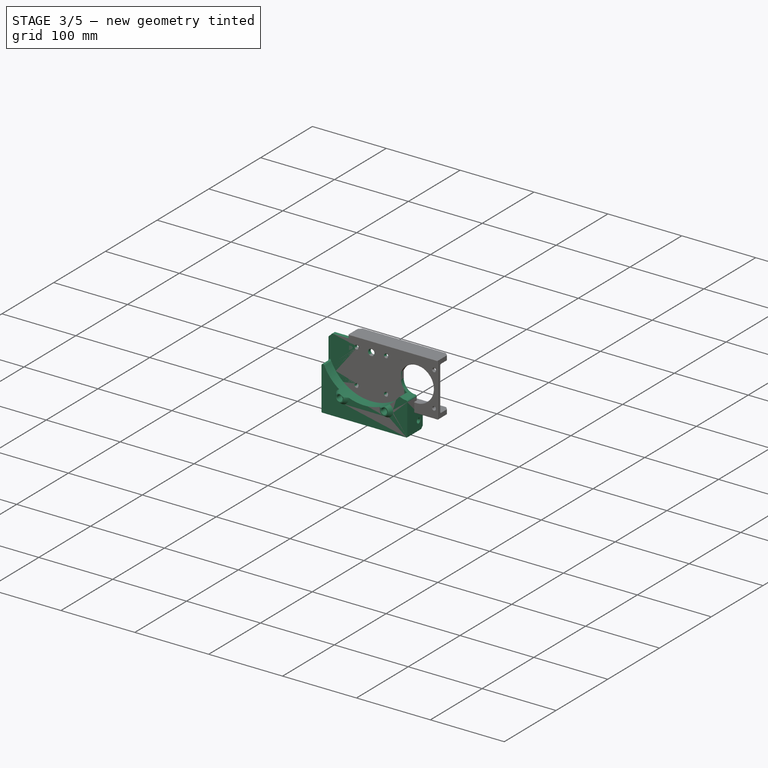
[diagram: stage 3 of 5 — iso view after this stage's code; geometry added in this stage tinted green]
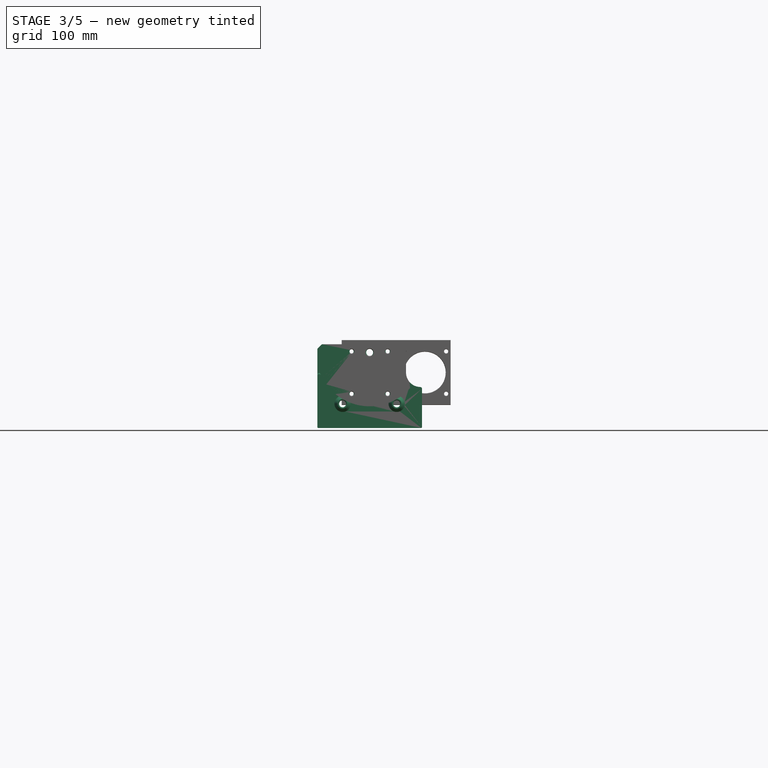
[diagram: stage 3 of 5 — front view after this stage's code; geometry added in this stage tinted green]
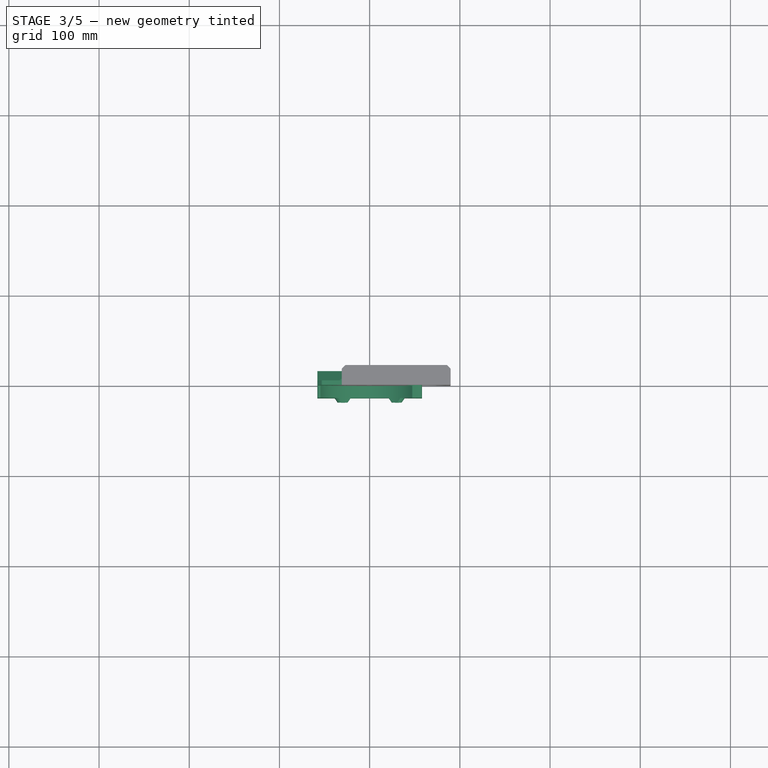
[diagram: stage 3 of 5 — top view after this stage's code; geometry added in this stage tinted green]
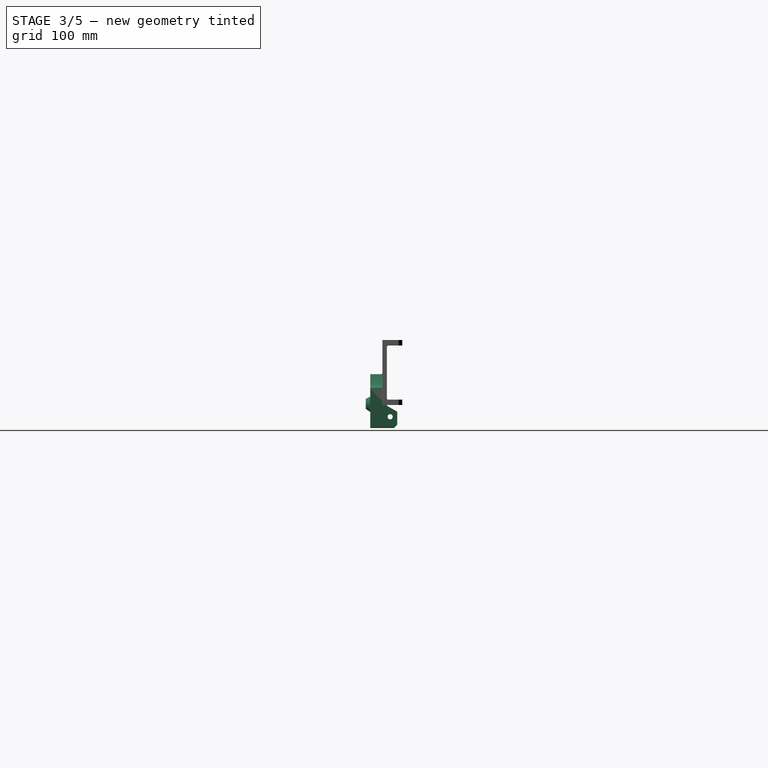
[diagram: stage 3 of 5 — right view after this stage's code; geometry added in this stage tinted green]
FEATURE [PartDesign::Body] Body006  label="Nema17 stepper motor"
  AllowCompound = false
  Group = -> [Sketch022,Pad007,Sketch023,Pad008,Chamfer001]
  Origin = -> Origin008
  Placement = pos=(61.3149,14,-22.3168) rot=(0,0,1;0rad)
  Tip = -> Chamfer001
  expr: .Placement.Base.x = <<Pinion assembly>>.Placement.Base.x
  expr: .Placement.Base.y = <<Pinion assembly>>.Placement.Base.y - Sketch012.Constraints.base + 2 mm
  expr: .Placement.Base.z = <<Pinion assembly>>.Placement.Base.z
FEATURE [Sketcher::SketchObject] Sketch024
  ArcFitTolerance = 1e-06
  AttachmentSupport = -> [XZ_Plane009]
  FullyConstrained = false
  MakeInternals = false
  MapMode = 5
  Placement = pos=(0,0,0) rot=(1,0,0;1.5708rad)
  expr: .Constraints.depth = Sketch007.Constraints.chain_bottom
  expr: .Constraints.heigth = 8 / 2 + 5
  sketch-geometry (5):
    g0: LineSegment StartX=-58 StartY=9 StartZ=0 EndX=-58 EndY=-83.7466 EndZ=0
    g1: LineSegment StartX=-58 StartY=-83.7466 StartZ=0 EndX=58 EndY=-83.7466 EndZ=0
    g2: LineSegment StartX=58 StartY=9 StartZ=0 EndX=-58 EndY=9 EndZ=0
    g3: LineSegment StartX=58 StartY=-83.7466 StartZ=0 EndX=58 EndY=9 EndZ=0
    g4: Circle [constr] CenterX=61.3149 CenterY=-22.3168 CenterZ=0 NormalX=0 NormalY=0 NormalZ=1 AngleXU=0 Radius=15.9345
  constraints (11):
    c: Coincident(g0,g1)
    c: Coincident(g2,g0)
    c: Vertical(g0)
    c: Horizontal(g2)
    c: Symmetric(g0,g1,g-2)
    c: Distance(g1) = 116  'width'
    c: DistanceY(g-1,g1) = -83.7466  'depth'
    c: Coincident(g1,g3)
    c: Vertical(g3)
    c: DistanceY(g-1,g2) = 9  'heigth'
    c: Coincident(g3,g2)
FEATURE [PartDesign::Pad] Pad009
  Direction = (0,-1,2e-16)
  Length = 5
  Length2 = 10
  Placement = pos=(0,0,0) rot=(1,0,0;1.5708rad)
  Profile = -> Sketch024
  ReferenceAxis = -> Sketch024 [N_Axis]
  Refine = true
  Reversed = true
  Suppressed = false
  Type = 0
FEATURE [PartDesign::Body] Body002  label="Drive sprocket"
  AllowCompound = false
  Group = -> [Sprocket,Sketch001,Pad,Pad001,Sketch002,Sketch003,Groove,Sketch016,Pocket005,Sketch017,Pocket006,Sketch018,Hole003,Sketch019,Hole004,PolarPattern001,Sketch025,Groove002]
  Origin = -> Origin002
  Placement = pos=(0,-19,0) rot=(1,0,0;1.5708rad)
  Tip = -> Groove002
  expr: .Placement.Base.y = -InvoluteGear.height - Pad.Length
FEATURE [Sketcher::SketchObject] Sketch026  label="Pinion position calc sketch"
  ArcFitTolerance = 1e-06
  AttachmentSupport = -> [XZ_Plane010]
  FullyConstrained = false
  MakeInternals = false
  MapMode = 5
  Placement = pos=(0,0,0) rot=(1,0,0;1.5708rad)
  expr: Constraints[2] = InvoluteGear.pitch_diameter / 2 + InvoluteGear001.pitch_diameter / 2
  sketch-geometry (2):
    g0: Circle CenterX=61.3149 CenterY=-22.3168 CenterZ=0 NormalX=0 NormalY=0 NormalZ=1 AngleXU=0 Radius=13.0972
    g1: LineSegment StartX=61.3149 StartY=-22.3168 StartZ=0 EndX=0 EndY=0 EndZ=0
  constraints (6):
    c: Coincident(g1,g0)
    c: Coincident(g1,g-1)
    c: Distance(g1) = 65.25
    c: DistanceY(g-1,g0) = -22.3168  'pinion_z'
    c: DistanceX(g-2,g0) = 61.3149  'pinion_x'
    c: Angle(g1,g-1) = 0.349066
FEATURE [PartDesign::Body] Body008  label="Pinion position calc"
  AllowCompound = false
  Group = -> [Sketch026]
  Origin = -> Origin010
FEATURE [Sketcher::SketchObject] Sketch027
  ArcFitTolerance = 1e-06
  AttachmentSupport = -> [XZ_Plane009]
  FullyConstrained = false
  MakeInternals = false
  MapMode = 5
  Placement = pos=(0,0,0) rot=(1,0,0;1.5708rad)
  expr: Constraints[6] = <<Pinion position calc sketch>>.Constraints.pinion_x
  expr: Constraints[7] = <<Pinion position calc sketch>>.Constraints.pinion_z
  sketch-geometry (10):
    g0: ArcOfCircle [constr] CenterX=56.3149 CenterY=-22.3168 CenterZ=0 NormalX=0 NormalY=0 NormalZ=1 AngleXU=0 Radius=16 StartAngle=1.5708 EndAngle=4.71239
    g1: ArcOfCircle [constr] CenterX=66.3149 CenterY=-22.3168 CenterZ=0 NormalX=0 NormalY=0 NormalZ=1 AngleXU=0 Radius=16 StartAngle=4.71239 EndAngle=7.85398
    g2: LineSegment [constr] StartX=56.3149 StartY=-6.31681 StartZ=0 EndX=66.3149 EndY=-6.31681 EndZ=0
    g3: LineSegment [constr] StartX=56.3149 StartY=-38.3168 StartZ=0 EndX=66.3149 EndY=-38.3168 EndZ=0
    g4: Circle [constr] CenterX=61.3149 CenterY=-22.3168 CenterZ=0 NormalX=0 NormalY=0 NormalZ=1 AngleXU=0 Radius=14.9141
    g5: ArcOfCircle CenterX=56.3149 CenterY=-22.3168 CenterZ=0 NormalX=0 NormalY=0 NormalZ=1 AngleXU=0 Radius=16 StartAngle=3.14159 EndAngle=4.71239
    g6: LineSegment StartX=56.3149 StartY=-38.3168 StartZ=0 EndX=200 EndY=-38.3168 EndZ=0
    g7: LineSegment StartX=200 StartY=-38.3168 StartZ=0 EndX=200 EndY=50 EndZ=0
    g8: LineSegment StartX=200 StartY=50 StartZ=0 EndX=40.3149 EndY=50 EndZ=0
    g9: LineSegment StartX=40.3149 StartY=-22.3168 StartZ=0 EndX=40.3149 EndY=50 EndZ=0
  constraints (24):
    c: Tangent(g0,g2) = 1.5708
    c: Tangent(g0,g3) = -1.5708
    c: Tangent(g1,g2) = 1.5708
    c: Tangent(g1,g3) = -1.5708
    c: Equal(g0,g1)
    c: Horizontal(g2)
    c: DistanceX(g-2,g4) = 61.3149
    c: DistanceY(g-1,g4) = -22.3168
    c: Symmetric(g0,g1,g4)
    c: Distance(g0,g1) = 10
    c: Diameter(g1) = 32
    c: Coincident(g5,g0)
    c: Coincident(g5,g0)
    c: Coincident(g7,g6)
    c: Vertical(g7)
    c: Coincident(g8,g7)
    c: Horizontal(g8)
    c: Coincident(g9,g8)
    c: Vertical(g9)
    c: Tangent(g9,g5) = 1.5708
    c: DistanceY(g-1,g7) = 50
    c: DistanceX(g-2,g6) = 200
    c: Horizontal(g6)
    c: Coincident(g6,g0)
FEATURE [Sketcher::SketchObject] Sketch028
  ArcFitTolerance = 1e-06
  AttachmentSupport = -> [XZ_Plane009]
  ExternalGeometry = -> [Sketch024]
  FullyConstrained = true
  MakeInternals = false
  MapMode = 5
  Placement = pos=(0,0,0) rot=(1,0,0;1.5708rad)
  expr: Constraints[3] = InvoluteGear.addendum_diameter + 4 mm
  sketch-geometry (4):
    g0: ArcOfCircle CenterX=0 CenterY=0 CenterZ=0 NormalX=0 NormalY=0 NormalZ=1 AngleXU=0 Radius=59.75 StartAngle=3.38422 EndAngle=6.04056
    g1: LineSegment StartX=-58 StartY=-14.3549 StartZ=0 EndX=-58 EndY=-83.7466 EndZ=0
    g2: LineSegment StartX=-58 StartY=-83.7466 StartZ=0 EndX=58 EndY=-83.7466 EndZ=0
    g3: LineSegment StartX=58 StartY=-83.7466 StartZ=0 EndX=58 EndY=-14.3549 EndZ=0
  constraints (10):
    c: Coincident(g0,g-1)
    c: PointOnObject(g0,g-4)
    c: PointOnObject(g0,g-3)
    c: Diameter(g0) = 119.5
    c: Coincident(g0,g1)
    c: Coincident(g1,g2)
    c: Coincident(g2,g-3)
    c: Coincident(g2,g3)
    c: Coincident(g3,g0)
    c: Coincident(g-4,g1)
FEATURE [PartDesign::Pad] Pad010
  BaseFeature = -> Pad009
  Direction = (0,-1,2e-16)
  Length = 13.5
  Length2 = 10
  Placement = pos=(0,0,0) rot=(1,0,0;1.5708rad)
  Profile = -> Sketch028
  ReferenceAxis = -> Sketch028 [N_Axis]
  Refine = true
  Suppressed = false
  Type = 0
  expr: Length = -<<Idler sprocket1>>.Placement.Base.y - Pad002.Length
FEATURE [PartDesign::Fillet] Fillet
  Base = -> Pad010 [Edge11,Edge12]
  BaseFeature = -> Pad010
  Placement = pos=(0,0,0) rot=(1,0,0;1.5708rad)
  Radius = 2
  Refine = true
  SupportTransform = false
  Suppressed = false
  UseAllEdges = false
FEATURE [PartDesign::Fillet] Fillet001
  Base = -> Fillet [Edge1]
  BaseFeature = -> Fillet
  Placement = pos=(0,0,0) rot=(1,0,0;1.5708rad)
  Radius = 1.5
  Refine = true
  SupportTransform = false
  Suppressed = false
  UseAllEdges = false
FEATURE [PartDesign::Pocket] Pocket007
  BaseFeature = -> Fillet001
  Direction = (0,1,-2e-16)
  Length = 5
  Length2 = 5
  Midplane = true
  Placement = pos=(0,0,0) rot=(1,0,0;1.5708rad)
  Profile = -> Sketch027
  ReferenceAxis = -> Sketch027 [N_Axis]
  Refine = true
  Suppressed = false
  Type = 1
FEATURE [Sketcher::SketchObject] Sketch030
  ArcFitTolerance = 1e-06
  AttachmentSupport = -> [YZ_Plane009]
  FullyConstrained = true
  MakeInternals = false
  MapMode = 5
  Placement = pos=(0,0,0) rot=(0.57735,0.57735,0.57735;2.0944rad)
  expr: Constraints[11] = 21.5 mm - VarSet.Clearence_for_gears
  expr: Constraints[5] = Sketch024.Constraints.depth
  expr: Constraints[7] = Pad009.Length
  sketch-geometry (4):
    g0: LineSegment StartX=5 StartY=-83.7466 StartZ=0 EndX=16.5 EndY=-83.7466 EndZ=0
    g1: LineSegment StartX=16.5 StartY=-83.7466 StartZ=0 EndX=16.5 EndY=-65.7466 EndZ=0
    g2: LineSegment StartX=16.5 StartY=-65.7466 StartZ=0 EndX=5 EndY=-59.107 EndZ=0
    g3: LineSegment StartX=5 StartY=-59.107 StartZ=0 EndX=5 EndY=-83.7466 EndZ=0
  constraints (12):
    c: Horizontal(g0)
    c: Coincident(g0,g1)
    c: Coincident(g1,g2)
    c: Coincident(g3,g0)
    c: Vertical(g1)
    c: DistanceY(g-1,g0) = -83.7466
    c: Coincident(g3,g2)
    c: DistanceX(g-2,g0) = 5
    c: Angle(g3,g-2) = 0
    c: Distance(g1) = 18
    c: Angle(g2,g-2) = 2.0944
    c: DistanceX(g-2,g0) = 16.5
FEATURE [PartDesign::Pad] Pad011
  BaseFeature = -> Pocket007
  Direction = (1,0,0)
  Length = 116
  Length2 = 10
  Midplane = true
  Placement = pos=(0,0,0) rot=(1,0,0;1.5708rad)
  Profile = -> Sketch030
  ReferenceAxis = -> Sketch030 [N_Axis]
  Refine = true
  Suppressed = false
  Type = 0
  expr: Length = Sketch024.Constraints.width
FEATURE [PartDesign::Chamfer] Chamfer002
  Angle = 45
  Base = -> Pad011 [Edge39]
  BaseFeature = -> Pad011
  ChamferType = 0
  FlipDirection = false
  Placement = pos=(0,0,0) rot=(1,0,0;1.5708rad)
  Refine = true
  Size = 3.5
  Size2 = 1
  SupportTransform = false
  Suppressed = false
  UseAllEdges = false
FEATURE [Sketcher::SketchObject] Sketch031
  ArcFitTolerance = 1e-06
  AttachmentOffset = pos=(0,0,18.5) rot=(0,0,1;0rad)
  AttachmentSupport = -> [XZ_Plane009]
  FullyConstrained = true
  MakeInternals = false
  MapMode = 5
  Placement = pos=(0,-18.5,4.1e-15) rot=(1,0,0;1.5708rad)
  expr: .AttachmentOffset.Base.z = Pad010.Length + VarSet.Clearence_for_gears
  expr: Constraints[3] = <<Idler sprocket2>>.Placement.Base.z
  expr: Constraints[4] = <<Idler sprocket2>>.Placement.Base.x
  sketch-geometry (2):
    g0: Circle CenterX=-30 CenterY=-57 CenterZ=0 NormalX=0 NormalY=0 NormalZ=1 AngleXU=0 Radius=5.5
    g1: Circle CenterX=30 CenterY=-57 CenterZ=0 NormalX=0 NormalY=0 NormalZ=1 AngleXU=0 Radius=5.5
  constraints (5):
    c: Symmetric(g1,g0,g-2)
    c: Diameter(g1) = 11
    c: Equal(g1,g0)
    c: DistanceY(g-1,g1) = -57
    c: DistanceX(g-2,g1) = 30
FEATURE [PartDesign::Pad] Pad012
  BaseFeature = -> Chamfer002
  Direction = (0,-1,2e-16)
  Length = 5
  Length2 = 10
  Placement = pos=(0,0,0) rot=(1,0,0;1.5708rad)
  Profile = -> Sketch031
  ReferenceAxis = -> Sketch031 [N_Axis]
  Refine = true
  Reversed = true
  Suppressed = false
  TaperAngle = 35
  Type = 0
  expr: Length = VarSet.Clearence_for_gears
FEATURE [Sketcher::SketchObject] Sketch032
  ArcFitTolerance = 1e-06
  AttachmentSupport = -> [XZ_Plane009]
  ExternalGeometry = -> [Sketch028]
  FullyConstrained = true
  MakeInternals = false
  MapMode = 5
  Placement = pos=(0,0,0) rot=(1,0,0;1.5708rad)
  sketch-geometry (1):
    g0: Circle CenterX=0 CenterY=0 CenterZ=0 NormalX=0 NormalY=0 NormalZ=1 AngleXU=0 Radius=59.75
  constraints (2):
    c: Coincident(g0,g-1)
    c: PointOnObject(g-3,g0)
FEATURE [PartDesign::Pocket] Pocket008
  BaseFeature = -> Pad012
  Direction = (0,1,-2e-16)
  Length = 5
  Length2 = 5
  Placement = pos=(0,0,0) rot=(1,0,0;1.5708rad)
  Profile = -> Sketch032
  ReferenceAxis = -> Sketch032 [N_Axis]
  Refine = true
  Reversed = true
  Suppressed = false
  Type = 1
FEATURE [Sketcher::SketchObject] Sketch033
  ArcFitTolerance = 1e-06
  AttachmentSupport = -> [XZ_Plane009]
  FullyConstrained = true
  MakeInternals = false
  MapMode = 5
  Placement = pos=(0,0,0) rot=(1,0,0;1.5708rad)
  expr: Constraints[5] = <<Idler sprocket2>>.Placement.Base.x
  expr: Constraints[6] = <<Idler sprocket2>>.Placement.Base.z
  sketch-geometry (3):
    g0: Circle CenterX=0 CenterY=0 CenterZ=0 NormalX=0 NormalY=0 NormalZ=1 AngleXU=0 Radius=3.85
    g1: Circle CenterX=30 CenterY=-57 CenterZ=0 NormalX=0 NormalY=0 NormalZ=1 AngleXU=0 Radius=3.85
    g2: Circle CenterX=-30 CenterY=-57 CenterZ=0 NormalX=0 NormalY=0 NormalZ=1 AngleXU=0 Radius=3.85
  constraints (7):
    c: Coincident(g0,g-1)
    c: Symmetric(g1,g2,g-2)
    c: Equal(g1,g2)
    c: Equal(g1,g0)
    c: Diameter(g1) = 7.7
    c: DistanceX(g-2,g1) = 30
    c: DistanceY(g-1,g1) = -57
FEATURE [PartDesign::Pocket] Pocket009
  BaseFeature = -> Pocket008
  Direction = (0,1,-2e-16)
  Length = 5
  Length2 = 5
  Midplane = true
  Placement = pos=(0,0,0) rot=(1,0,0;1.5708rad)
  Profile = -> Sketch033
  ReferenceAxis = -> Sketch033 [N_Axis]
  Refine = true
  Suppressed = false
  Type = 1
FEATURE [PartDesign::Body] Body009  label="Frontplate"
  AllowCompound = false
  Group = -> [Binder,Sketch034,Pad013,Fillet002,Fillet003,Sketch035,Pad014,Sketch036,Pocket010,Sketch037,Hole005,Chamfer003]
  Origin = -> Origin012
  Placement = pos=(0,-24,0) rot=(0,0,1;0rad)
  Tip = -> Chamfer003
  expr: .Placement.Base.y = <<Idler sprocket1>>.Placement.Base.y - 5 mm
FEATURE [Sketcher::SketchObject] Sketch038
  ArcFitTolerance = 1e-06
  AttachmentSupport = -> [YZ_Plane009]
  FullyConstrained = true
  MakeInternals = false
  MapMode = 5
  Placement = pos=(0,0,0) rot=(0.57735,0.57735,0.57735;2.0944rad)
  expr: Constraints[0] = Sketch024.Constraints.depth + 12.5 mm
  sketch-geometry (1):
    g0: Circle CenterX=8.5 CenterY=-71.2466 CenterZ=0 NormalX=0 NormalY=0 NormalZ=1 AngleXU=0 Radius=2.85
  constraints (3):
    c: DistanceY(g-1,g0) = -71.2466
    c: DistanceX(g-2,g0) = 8.5
    c: Diameter(g0) = 5.7
FEATURE [PartDesign::Pocket] Pocket011
  BaseFeature = -> Pocket009
  Direction = (-1,0,0)
  Length = 5
  Length2 = 5
  Midplane = true
  Placement = pos=(0,0,0) rot=(1,0,0;1.5708rad)
  Profile = -> Sketch038
  ReferenceAxis = -> Sketch038 [N_Axis]
  Refine = true
  Suppressed = false
  Type = 1
FEATURE [Sketcher::SketchObject] Sketch039
  ArcFitTolerance = 1e-06
  AttachmentSupport = -> [XZ_Plane009]
  FullyConstrained = false
  MakeInternals = false
  MapMode = 5
  Placement = pos=(0,0,0) rot=(1,0,0;1.5708rad)
  expr: Constraints[12] = <<Pinion assembly>>.Placement.Base.z
  sketch-geometry (11):
    g0: LineSegment [constr] StartX=-20 StartY=-45.8168 StartZ=0 EndX=20 EndY=-45.8168 EndZ=0
    g1: LineSegment [constr] StartX=20 StartY=-45.8168 StartZ=0 EndX=20 EndY=1.18319 EndZ=0
    g2: LineSegment [constr] StartX=20 StartY=1.18319 StartZ=0 EndX=-20 EndY=1.18319 EndZ=0
    g3: LineSegment [constr] StartX=-20 StartY=1.18319 StartZ=0 EndX=-20 EndY=-45.8168 EndZ=0
    g4: LineSegment [constr] StartX=0 StartY=0 StartZ=0 EndX=0 EndY=-22.3168 EndZ=0
    g5: Circle CenterX=-20 CenterY=1.18319 CenterZ=0 NormalX=0 NormalY=0 NormalZ=1 AngleXU=0 Radius=3.30965
    g6: Circle CenterX=20 CenterY=1.18319 CenterZ=0 NormalX=0 NormalY=0 NormalZ=1 AngleXU=0 Radius=3.81086
    g7: Circle CenterX=20 CenterY=-45.8168 CenterZ=0 NormalX=0 NormalY=0 NormalZ=1 AngleXU=0 Radius=4.01233
    g8: Circle CenterX=-20 CenterY=-45.8168 CenterZ=0 NormalX=0 NormalY=0 NormalZ=1 AngleXU=0 Radius=3.85292
    g9: LineSegment [constr] StartX=-20 StartY=1.18319 StartZ=0 EndX=20 EndY=-45.8168 EndZ=0
    g10: LineSegment [constr] StartX=-20 StartY=-45.8168 StartZ=0 EndX=20 EndY=1.18319 EndZ=0
  constraints (27):
    c: Coincident(g0,g1)
    c: Coincident(g1,g2)
    c: Coincident(g2,g3)
    c: Coincident(g3,g0)
    c: Horizontal(g0)
    c: Horizontal(g2)
    c: Vertical(g1)
    c: Vertical(g3)
    c: Distance(g3) = 47
    c: Distance(g2) = 40
    c: Coincident(g4,g-1)
    c: Vertical(g4)
    c: DistanceY(g-1,g4) = -22.3168
    c: Coincident(g5,g2)
    c: Coincident(g6,g1)
    c: Coincident(g7,g0)
    c: Coincident(g8,g0)
    c: Coincident(g9,g2)
    c: Coincident(g9,g0)
    c: Coincident(g10,g0)
    c: Coincident(g10,g1)
    c: PointOnObject(g4,g9)
    c: PointOnObject(g4,g10)
    c: DistanceX(g-2,g0) = 20  'hole1x'
    c: DistanceY(g-1,g0) = -45.8168  'hole1z'
    c: DistanceY(g-1,g2) = 1.18319  'hole2z'
    c: DistanceX(g-2,g2) = -20  'hole2x'
FEATURE [PartDesign::Hole] Hole006
  BaseFeature = -> Pocket011
  CustomThreadClearance = 0
  Depth = 308.227
  DepthType = 1
  Diameter = 4.6
  DrillForDepth = false
  DrillPoint = 1
  DrillPointAngle = 118
  HoleCutCountersinkAngle = 90
  HoleCutCustomValues = false
  HoleCutDepth = 0
  HoleCutDiameter = 6.1
  HoleCutType = 0
  ModelThread = false
  Placement = pos=(0,0,0) rot=(1,0,0;1.5708rad)
  Profile = -> Sketch039
  Refine = true
  Suppressed = false
  Tapered = false
  TaperedAngle = 90
  ThreadClass = 0
  ThreadDepth = 308.227
  ThreadDepthType = 0
  ThreadDirection = 0
  ThreadFit = 0
  ThreadSize = 0
  ThreadType = 0
  Threaded = false
  UseCustomThreadClearance = false
FEATURE [PartDesign::Chamfer] Chamfer004
  Angle = 45
  Base = -> Hole006 [Edge53,Edge10]
  BaseFeature = -> Hole006
  ChamferType = 0
  FlipDirection = false
  Placement = pos=(0,0,0) rot=(1,0,0;1.5708rad)
  Refine = true
  Size = 5
  Size2 = 1
  SupportTransform = false
  Suppressed = false
  UseAllEdges = false
FEATURE [PartDesign::Fillet] Fillet004
  Base = -> Chamfer004 [Edge81,Edge77,Edge75,Edge72,Edge2,Edge32]
  BaseFeature = -> Chamfer004
  Placement = pos=(0,0,0) rot=(1,0,0;1.5708rad)
  Radius = 2
  Refine = true
  SupportTransform = false
  Suppressed = false
  UseAllEdges = false
FEATURE [PartDesign::Body] Body011  label="Simple pinion - with 8mm bore"
  AllowCompound = false
  Group = -> [Clone001,Sketch041,Pocket012,Chamfer008,Sketch042,Pocket013,Chamfer009,PolarPattern002,Chamfer010]
  Origin = -> Origin014
  Tip = -> Chamfer010
FEATURE [App::Part] Part001  label="Pinion assembly"
  Group = -> [Body001,Nut,Body011]
  Origin = -> Origin006
  Placement = pos=(61.3149,0,-22.3168) rot=(0,1,0;0rad)
  expr: .Placement.Base.x = <<Pinion position calc sketch>>.Constraints.pinion_x
  expr: .Placement.Base.z = <<Pinion position calc sketch>>.Constraints.pinion_z
FEATURE [PartDesign::Chamfer] Chamfer005
  Angle = 45
  Base = -> Fillet004 [Face12,Face27,Face25,Face29,Face28,Face26,Face18,Face14,Edge69,Edge9]
  BaseFeature = -> Fillet004
  ChamferType = 0
  FlipDirection = false
  Placement = pos=(0,0,0) rot=(1,0,0;1.5708rad)
  Refine = true
  Size = 0.6
  Size2 = 1
  SupportTransform = false
  Suppressed = false
  UseAllEdges = false
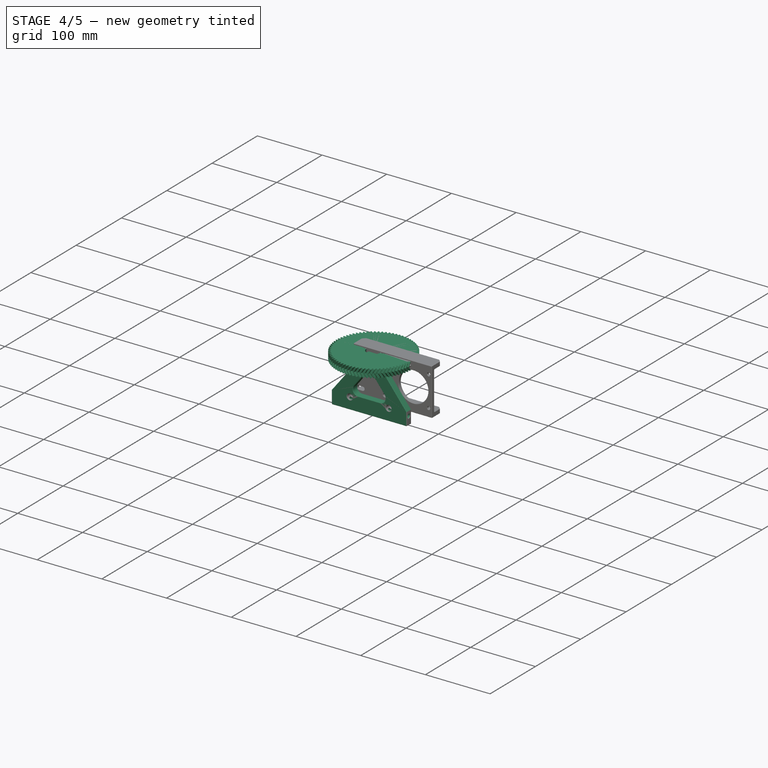
[diagram: stage 4 of 5 — iso view after this stage's code; geometry added in this stage tinted green]
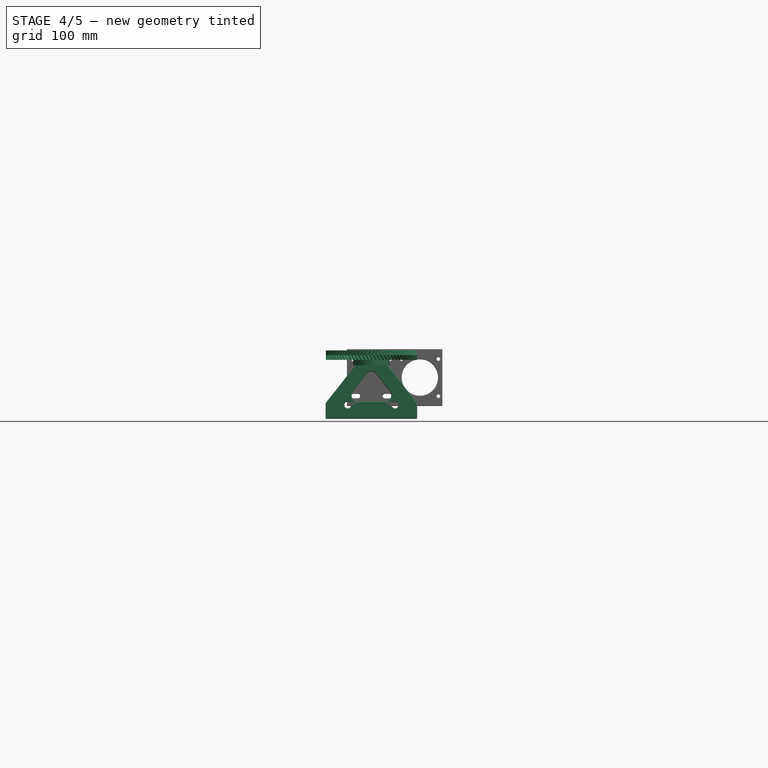
[diagram: stage 4 of 5 — front view after this stage's code; geometry added in this stage tinted green]
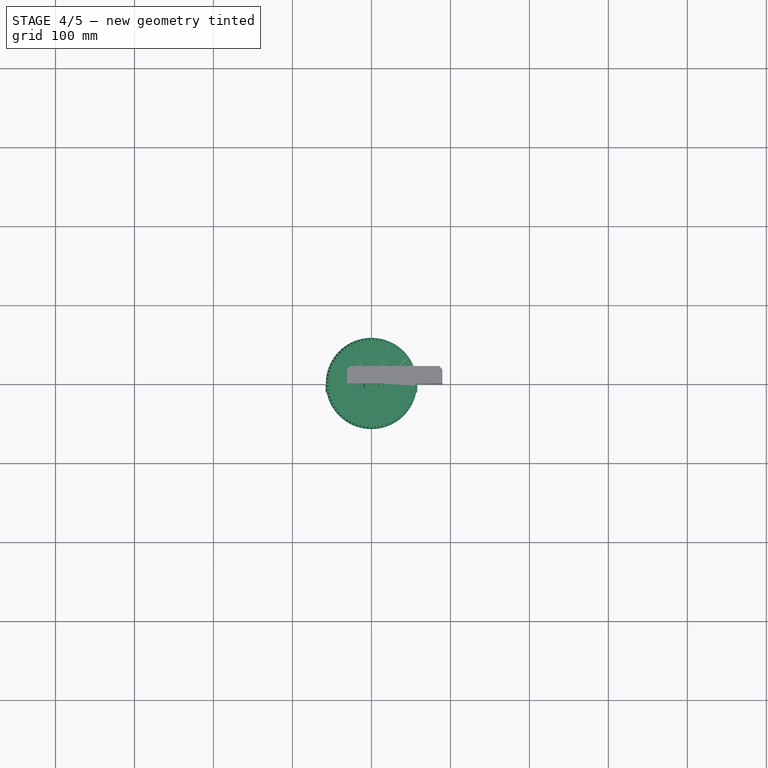
[diagram: stage 4 of 5 — top view after this stage's code; geometry added in this stage tinted green]
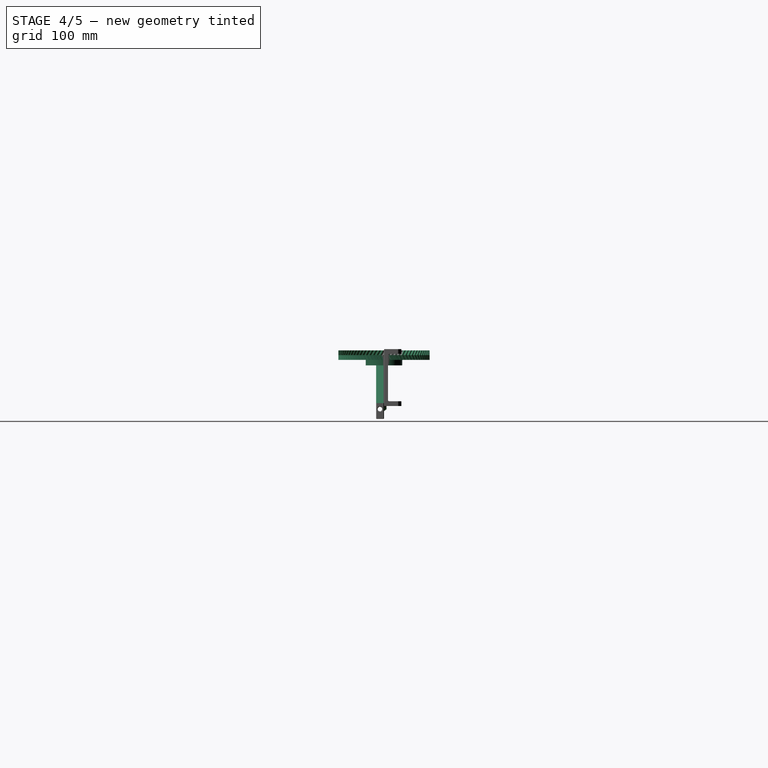
[diagram: stage 4 of 5 — right view after this stage's code; geometry added in this stage tinted green]
FEATURE [PartDesign::Pad] Pad001
  BaseFeature = -> Pad
  Direction = (0,0,1)
  Length = 2
  Length2 = 10
  Profile = -> Sprocket
  ReferenceAxis = -> Sprocket [N_Axis]
  Refine = true
  Suppressed = false
  Type = 0
FEATURE [Sketcher::SketchObject] Sketch002  label="Diameter reference"
  ArcFitTolerance = 1e-06
  AttachmentSupport = -> [XY_Plane002]
  FullyConstrained = true
  MakeInternals = false
  MapMode = 5
  expr: Constraints[0] = Sprocket.NumberOfTeeth * Sprocket.Pitch / pi
  sketch-geometry (1):
    g0: Circle CenterX=0 CenterY=0 CenterZ=0 NormalX=0 NormalY=0 NormalZ=1 AngleXU=0 Radius=28.632
  constraints (2):
    c: Diameter(g0) = 57.2639
    c: Coincident(g0,g-1)
FEATURE [Sketcher::SketchObject] Sketch003
  ArcFitTolerance = 1e-06
  AttachmentOffset = pos=(-28.632,1,0) rot=(0,0,1;0rad)
  AttachmentSupport = -> [YZ_Plane002]
  FullyConstrained = true
  MakeInternals = false
  MapMode = 5
  Placement = pos=(0,-28.632,1) rot=(0.57735,0.57735,0.57735;2.0944rad)
  expr: .AttachmentOffset.Base.x = -Sprocket.NumberOfTeeth * Sprocket.Pitch / pi / 2
  expr: .AttachmentOffset.Base.y = Pad001.Length / 2
  expr: Constraints[6] = Pad001.Length
  sketch-geometry (6):
    g0: LineSegment StartX=-12 StartY=1 StartZ=0 EndX=-0.786074 EndY=1 EndZ=0
    g1: LineSegment StartX=-2 StartY=-0.15 StartZ=0 EndX=-0.786074 EndY=-1 EndZ=0
    g2: LineSegment StartX=-0.786074 StartY=-1 StartZ=0 EndX=-12 EndY=-1 EndZ=0
    g3: LineSegment StartX=-12 StartY=-1 StartZ=0 EndX=-12 EndY=1 EndZ=0
    g4: LineSegment StartX=-2 StartY=-0.15 StartZ=0 EndX=-2 EndY=0.15 EndZ=0
    g5: LineSegment StartX=-2 StartY=0.15 StartZ=0 EndX=-0.786074 EndY=1 EndZ=0
  constraints (15):
    c: Horizontal(g0)
    c: Coincident(g1,g2)
    c: Coincident(g2,g3)
    c: Coincident(g3,g0)
    c: Symmetric(g2,g0,g-1)
    c: Angle(g1,g-1) = 0.610865
    c: Distance(g3) = 2
    c: Symmetric(g1,g0,g-1)
    c: DistanceX(g-2,g1) = -2  'tip_offset'
    c: Coincident(g4,g1)
    c: Coincident(g5,g4)
    c: Coincident(g5,g0)
    c: Symmetric(g4,g1,g-1)
    c: Distance(g4) = 0.3
    c: DistanceX(g-2,g2) = -12
FEATURE [PartDesign::Groove] Groove
  Angle = 360
  Angle2 = 60
  Axis = (1e-16,1e-16,1)
  Base = (0,0,0)
  BaseFeature = -> Pad001
  Profile = -> Sketch003
  ReferenceAxis = -> Z_Axis002
  Refine = true
  Reversed = true
  Suppressed = false
  Type = 0
FEATURE [PartDesign::Body] Body001  label="Involute pinion"
  AllowCompound = false
  Group = -> [InvoluteGear001,Sketch011,Pocket002,Sketch012,Revolution]
  Origin = -> Origin001
  Placement = pos=(0,0,0) rot=(1,0,0;1.5708rad)
  Tip = -> Revolution
FEATURE [PartDesign::Pocket] Pocket003
  BaseFeature = -> InvoluteGear
  Direction = (0,0,-1)
  Length = 6.5
  Length2 = 5
  Profile = -> Sketch
  ReferenceAxis = -> Sketch [N_Axis]
  Refine = true
  Reversed = true
  Suppressed = false
  Type = 0
FEATURE [Sketcher::SketchObject] Sketch013
  ArcFitTolerance = 1e-06
  AttachmentSupport = -> [XY_Plane]
  FullyConstrained = true
  MakeInternals = false
  MapMode = 5
  expr: Constraints[0] = 22.6 - 0.5 * 2
  sketch-geometry (1):
    g0: Circle CenterX=0 CenterY=0 CenterZ=0 NormalX=0 NormalY=0 NormalZ=1 AngleXU=0 Radius=10.8
  constraints (2):
    c: Diameter(g0) = 21.6
    c: Coincident(g0,g-1)
FEATURE [PartDesign::Pocket] Pocket004
  BaseFeature = -> Pocket003
  Direction = (0,0,-1)
  Length = 5
  Length2 = 5
  Profile = -> Sketch013
  ReferenceAxis = -> Sketch013 [N_Axis]
  Refine = true
  Reversed = true
  Suppressed = false
  Type = 1
FEATURE [Sketcher::SketchObject] Sketch014
  ArcFitTolerance = 1e-06
  AttachmentSupport = -> [XY_Plane]
  FullyConstrained = false
  MakeInternals = false
  MapMode = 5
  expr: .Constraints.lockholepos = 22 / 2 + 3 / 2 + 0.8
  sketch-geometry (2):
    g0: Circle CenterX=-13.3 CenterY=0 CenterZ=0 NormalX=0 NormalY=0 NormalZ=1 AngleXU=0 Radius=2.67847
    g1: Circle CenterX=13.3 CenterY=0 CenterZ=0 NormalX=0 NormalY=0 NormalZ=1 AngleXU=0 Radius=3.5878
  constraints (3):
    c: PointOnObject(g0,g-1)
    c: Symmetric(g0,g1,g-2)
    c: DistanceX(g-2,g1) = 13.3  'lockholepos'
FEATURE [PartDesign::Hole] Hole001
  BaseFeature = -> Pocket004
  CustomThreadClearance = 0
  Depth = 322.246
  DepthType = 1
  Diameter = 2.7
  DrillForDepth = false
  DrillPoint = 1
  DrillPointAngle = 118
  HoleCutCountersinkAngle = 90
  HoleCutCustomValues = false
  HoleCutDepth = 0
  HoleCutDiameter = 4.5
  HoleCutType = 2
  ModelThread = false
  Profile = -> Sketch014
  Refine = true
  Reversed = true
  Suppressed = false
  Tapered = false
  TaperedAngle = 90
  ThreadClass = 0
  ThreadDepth = 322.246
  ThreadDepthType = 0
  ThreadDirection = 0
  ThreadFit = 0
  ThreadSize = 0
  ThreadType = 0
  Threaded = false
  UseCustomThreadClearance = false
FEATURE [PartDesign::Body] Body  label="Involute gear"
  AllowCompound = false
  Group = -> [InvoluteGear,Sketch,Pocket003,Sketch013,Pocket004,Sketch014,Hole001,Sketch015,Hole002,PolarPattern]
  Origin = -> Origin
  Placement = pos=(0,0,0) rot=(1,0,0;1.5708rad)
  Tip = -> PolarPattern
FEATURE [Sketcher::SketchObject] Sketch016
  ArcFitTolerance = 1e-06
  AttachmentOffset = pos=(0,0,2) rot=(0,0,1;0rad)
  AttachmentSupport = -> [XY_Plane002]
  FullyConstrained = true
  MakeInternals = false
  MapMode = 5
  Placement = pos=(0,0,2) rot=(0,0,1;0rad)
  expr: .AttachmentOffset.Base.z = Pad001.Length
  sketch-geometry (1):
    g0: Circle CenterX=0 CenterY=0 CenterZ=0 NormalX=0 NormalY=0 NormalZ=1 AngleXU=0 Radius=11.13
  constraints (2):
    c: Coincident(g0,g-1)
    c: Diameter(g0) = 22.26
FEATURE [PartDesign::Pocket] Pocket005
  BaseFeature = -> Groove
  Direction = (0,0,-1)
  Length = 6.5
  Length2 = 5
  Profile = -> Sketch016
  ReferenceAxis = -> Sketch016 [N_Axis]
  Refine = true
  Suppressed = false
  Type = 0
FEATURE [Sketcher::SketchObject] Sketch017
  ArcFitTolerance = 1e-06
  AttachmentSupport = -> [XY_Plane002]
  FullyConstrained = true
  MakeInternals = false
  MapMode = 5
  expr: .Constraints.bearinghole = 22.26 - 0.5 * 2
  sketch-geometry (1):
    g0: Circle CenterX=0 CenterY=0 CenterZ=0 NormalX=0 NormalY=0 NormalZ=1 AngleXU=0 Radius=10.63
  constraints (2):
    c: Coincident(g0,g-1)
    c: Diameter(g0) = 21.26  'bearinghole'
FEATURE [PartDesign::Pocket] Pocket006
  BaseFeature = -> Pocket005
  Direction = (0,0,-1)
  Length = 5
  Length2 = 5
  Profile = -> Sketch017
  ReferenceAxis = -> Sketch017 [N_Axis]
  Refine = true
  Suppressed = false
  Type = 1
FEATURE [PartDesign::SubShapeBinder] Binder
  BindCopyOnChange = 0
  BindMode = 0
  ClaimChildren = false
  Context = -> <external Fabricatable-Axis-6.0.FCStd>#Link [Part.Body009.Binder.]
  Fuse = false
  MakeFace = true
  OffsetFill = false
  OffsetIntersection = false
  OffsetJoinType = 0
  OffsetOpenResult = false
  PartialLoad = false
  Refine = true
  Relative = true
  Support = -> [Body007[Sketch024.]]
  _Version = 2
FEATURE [Sketcher::SketchObject] Sketch034
  ArcFitTolerance = 1e-06
  AttachmentSupport = -> [XZ_Plane012]
  ExternalGeometry = -> [Binder]
  FullyConstrained = true
  MakeInternals = false
  MapMode = 5
  Placement = pos=(0,0,0) rot=(1,0,0;1.5708rad)
  sketch-geometry (9):
    g0: LineSegment StartX=-58 StartY=-54.7466 StartZ=0 EndX=-8 EndY=9 EndZ=0
    g1: LineSegment StartX=-8 StartY=9 StartZ=0 EndX=8 EndY=9 EndZ=0
    g2: LineSegment StartX=8 StartY=9 StartZ=0 EndX=58 EndY=-54.7466 EndZ=0
    g3: LineSegment StartX=-33.5549 StartY=-52.7466 StartZ=0 EndX=33.5549 EndY=-52.7466 EndZ=0
    g4: LineSegment StartX=33.5549 StartY=-52.7466 StartZ=0 EndX=0 EndY=-9.96638 EndZ=0
    g5: LineSegment StartX=0 StartY=-9.96638 StartZ=0 EndX=-33.5549 EndY=-52.7466 EndZ=0
    g6: LineSegment StartX=-58 StartY=-54.7466 StartZ=0 EndX=-58 EndY=-74.7466 EndZ=0
    g7: LineSegment StartX=-58 StartY=-74.7466 StartZ=0 EndX=58 EndY=-74.7466 EndZ=0
    g8: LineSegment StartX=58 StartY=-74.7466 StartZ=0 EndX=58 EndY=-54.7466 EndZ=0
  constraints (24):
    c: PointOnObject(g0,g-3)
    c: Coincident(g0,g1)
    c: Coincident(g1,g2)
    c: Symmetric(g0,g2,g-2)
    c: Symmetric(g0,g1,g-2)
    c: Coincident(g3,g4)
    c: PointOnObject(g4,g-2)
    c: Coincident(g4,g5)
    c: Coincident(g5,g3)
    c: Parallel(g5,g0)
    c: Symmetric(g3,g3,g-2)
    c: Coincident(g0,g6)
    c: Vertical(g6)
    c: Coincident(g6,g7)
    c: Horizontal(g7)
    c: Coincident(g7,g8)
    c: Coincident(g8,g2)
    c: Vertical(g8)
    c: Distance(g7,g-4) = 9
    c: Distance(g6) = 20
    c: Vertical(g7,g-4)
    c: Distance(g1) = 16
    c: Distance(g4,g2) = 18
    c: Distance(g3,g7) = 22
FEATURE [PartDesign::Pad] Pad013
  Direction = (0,-1,2e-16)
  Length = 10
  Length2 = 10
  Placement = pos=(0,0,0) rot=(1,0,0;1.5708rad)
  Profile = -> Sketch034
  ReferenceAxis = -> Sketch034 [N_Axis]
  Refine = true
  Suppressed = false
  Type = 0
FEATURE [PartDesign::Fillet] Fillet002
  Base = -> Pad013 [Edge19,Edge23,Edge20]
  BaseFeature = -> Pad013
  Placement = pos=(0,0,0) rot=(1,0,0;1.5708rad)
  Radius = 8
  Refine = true
  SupportTransform = false
  Suppressed = false
  UseAllEdges = false
FEATURE [PartDesign::Fillet] Fillet003
  Base = -> Fillet002 [Edge34,Edge33]
  BaseFeature = -> Fillet002
  Placement = pos=(0,0,0) rot=(1,0,0;1.5708rad)
  Radius = 2
  Refine = true
  SupportTransform = false
  Suppressed = false
  UseAllEdges = false
FEATURE [Sketcher::SketchObject] Sketch035
  ArcFitTolerance = 1e-06
  AttachmentOffset = pos=(0,0,-3.2) rot=(0,0,1;0rad)
  AttachmentSupport = -> [XZ_Plane012]
  FullyConstrained = true
  MakeInternals = false
  MapMode = 5
  Placement = pos=(0,3.2,-7e-16) rot=(1,0,0;1.5708rad)
  expr: Constraints[3] = <<Idler sprocket1>>.Placement.Base.z
  expr: Constraints[4] = <<Idler sprocket1>>.Placement.Base.x
  sketch-geometry (2):
    g0: Circle CenterX=-30 CenterY=-57 CenterZ=0 NormalX=0 NormalY=0 NormalZ=1 AngleXU=0 Radius=5.5
    g1: Circle CenterX=30 CenterY=-57 CenterZ=0 NormalX=0 NormalY=0 NormalZ=1 AngleXU=0 Radius=5.5
  constraints (5):
    c: Equal(g0,g1)
    c: Diameter(g0) = 11
    c: Symmetric(g0,g1,g-2)
    c: DistanceY(g-1,g0) = -57
    c: DistanceX(g-2,g0) = -30
FEATURE [PartDesign::Pad] Pad014
  BaseFeature = -> Fillet003
  Direction = (0,-1,2e-16)
  Length = 3.2
  Length2 = 10
  Placement = pos=(0,0,0) rot=(1,0,0;1.5708rad)
  Profile = -> Sketch035
  ReferenceAxis = -> Sketch035 [N_Axis]
  Refine = true
  Suppressed = false
  TaperAngle = 35
  Type = 0
FEATURE [Sketcher::SketchObject] Sketch036
  ArcFitTolerance = 1e-06
  AttachmentSupport = -> [XZ_Plane012]
  FullyConstrained = true
  MakeInternals = false
  MapMode = 5
  Placement = pos=(0,0,0) rot=(1,0,0;1.5708rad)
  expr: Constraints[5] = <<Idler sprocket1>>.Placement.Base.x
  expr: Constraints[6] = <<Idler sprocket1>>.Placement.Base.z
  sketch-geometry (3):
    g0: Circle CenterX=0 CenterY=0 CenterZ=0 NormalX=0 NormalY=0 NormalZ=1 AngleXU=0 Radius=4.2
    g1: Circle CenterX=-30 CenterY=-57 CenterZ=0 NormalX=0 NormalY=0 NormalZ=1 AngleXU=0 Radius=4.2
    g2: Circle CenterX=30 CenterY=-57 CenterZ=0 NormalX=0 NormalY=0 NormalZ=1 AngleXU=0 Radius=4.2
  constraints (7):
    c: Coincident(g0,g-1)
    c: Equal(g2,g1)
    c: Equal(g2,g0)
    c: Diameter(g2) = 8.4
    c: Symmetric(g2,g1,g-2)
    c: DistanceX(g-2,g1) = -30
    c: DistanceY(g-1,g1) = -57
FEATURE [PartDesign::Pocket] Pocket010
  BaseFeature = -> Pad014
  Direction = (0,1,-2e-16)
  Length = 5
  Length2 = 5
  Midplane = true
  Placement = pos=(0,0,0) rot=(1,0,0;1.5708rad)
  Profile = -> Sketch036
  ReferenceAxis = -> Sketch036 [N_Axis]
  Refine = true
  Suppressed = false
  Type = 1
FEATURE [Sketcher::SketchObject] Sketch037
  ArcFitTolerance = 1e-06
  AttachmentSupport = -> [Pocket010]
  ExternalGeometry = -> [Pocket010]
  FullyConstrained = false
  MakeInternals = false
  MapMode = 5
  Placement = pos=(58,0,0) rot=(0.707107,0,0.707107;3.14159rad)
  sketch-geometry (1):
    g0: Circle CenterX=-62.2466 CenterY=5.2 CenterZ=0 NormalX=0 NormalY=0 NormalZ=1 AngleXU=0 Radius=1.92532
  constraints (2):
    c: DistanceY(g-1,g0) = 5.2
    c: Distance(g0,g-3) = 12.5
FEATURE [PartDesign::Hole] Hole005
  BaseFeature = -> Pocket010
  CustomThreadClearance = 0
  Depth = 290.232
  DepthType = 1
  Diameter = 5.7
  DrillForDepth = false
  DrillPoint = 1
  DrillPointAngle = 118
  HoleCutCountersinkAngle = 90
  HoleCutCustomValues = false
  HoleCutDepth = 0
  HoleCutDiameter = 6.1
  HoleCutType = 0
  ModelThread = false
  Placement = pos=(0,0,0) rot=(1,0,0;1.5708rad)
  Profile = -> Sketch037
  Refine = true
  Suppressed = false
  Tapered = false
  TaperedAngle = 90
  ThreadClass = 0
  ThreadDepth = 290.232
  ThreadDepthType = 0
  ThreadDirection = 0
  ThreadFit = 0
  ThreadSize = 0
  ThreadType = 0
  Threaded = false
  UseCustomThreadClearance = false
FEATURE [PartDesign::Chamfer] Chamfer003
  Angle = 45
  Base = -> Hole005 [Face19,Face6,Face1,Edge25,Edge34]
  BaseFeature = -> Hole005
  ChamferType = 0
  FlipDirection = false
  Placement = pos=(0,0,0) rot=(1,0,0;1.5708rad)
  Refine = true
  Size = 0.6
  Size2 = 1
  SupportTransform = false
  Suppressed = false
  UseAllEdges = false
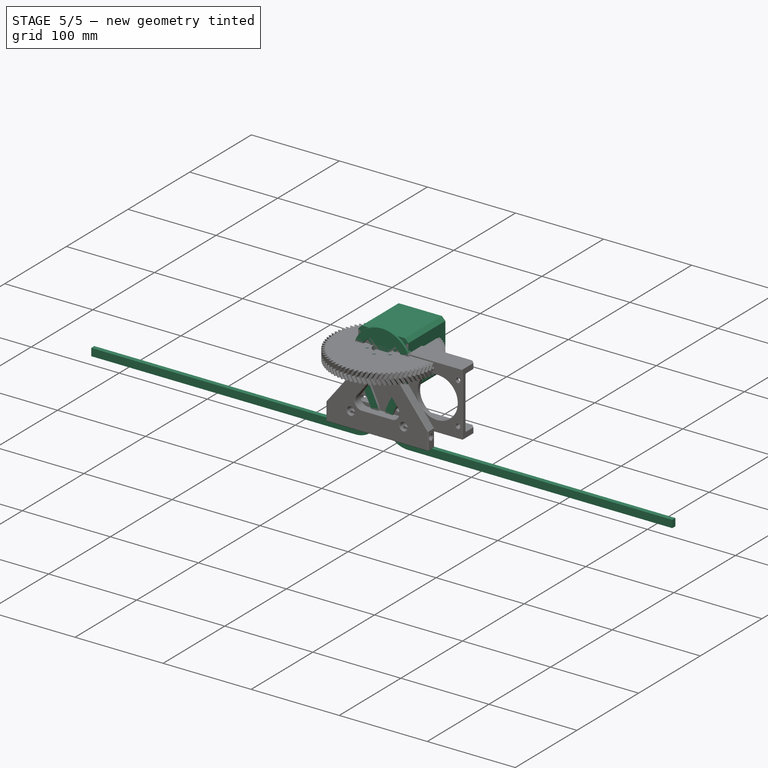
[diagram: stage 5 of 5 — iso view after this stage's code; geometry added in this stage tinted green]
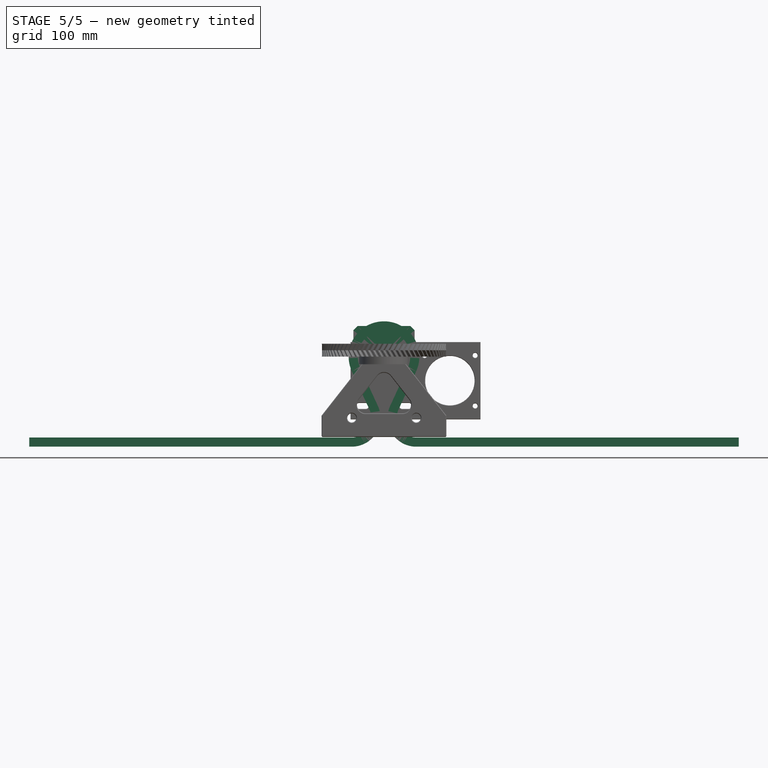
[diagram: stage 5 of 5 — front view after this stage's code; geometry added in this stage tinted green]
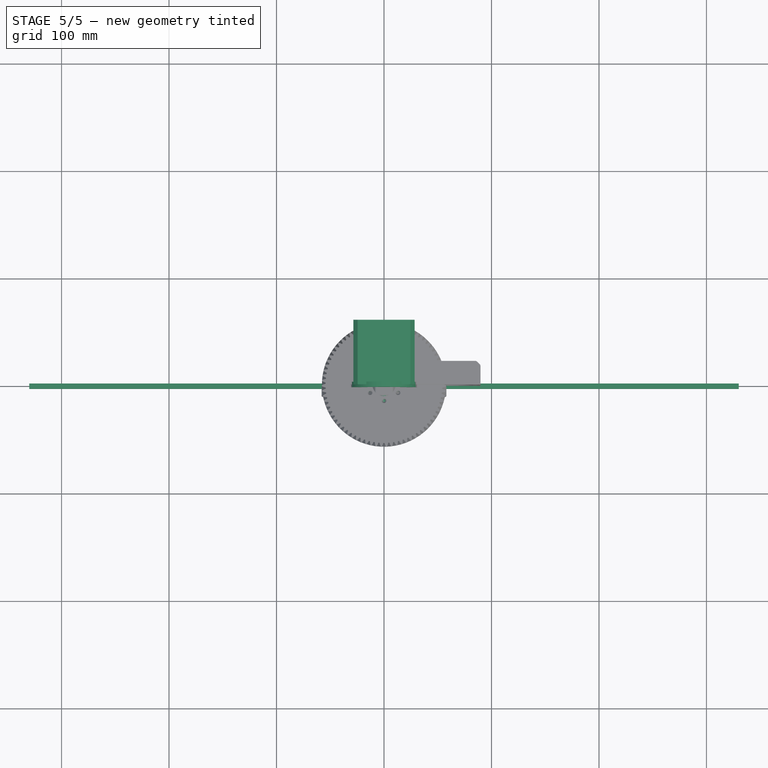
[diagram: stage 5 of 5 — top view after this stage's code; geometry added in this stage tinted green]
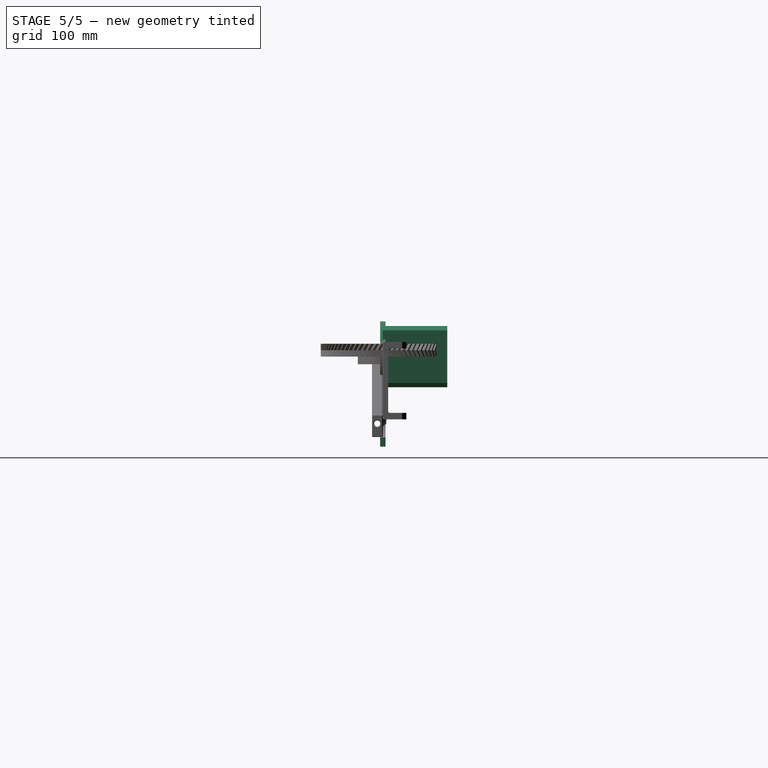
[diagram: stage 5 of 5 — right view after this stage's code; geometry added in this stage tinted green]
FEATURE [Sketcher::SketchObject] Sketch007
  ArcFitTolerance = 1e-06
  AttachmentSupport = -> [XZ_Plane004]
  FullyConstrained = true
  MakeInternals = false
  MapMode = 5
  Placement = pos=(0,0,0) rot=(1,0,0;1.5708rad)
  expr: Constraints[22] = Sprocket.NumberOfTeeth * Sprocket.Pitch / pi - 8.5 mm
  expr: Constraints[23] = Sprocket.NumberOfTeeth * Sprocket.Pitch / pi + 8.5 mm
  expr: Constraints[24] = Sprocket001.NumberOfTeeth * Sprocket.Pitch / pi - 8.5 mm
  expr: Constraints[3] = <<Idler sprocket1>>.Placement.Base.z
  expr: Constraints[4] = <<Idler sprocket1>>.Placement.Base.x
  sketch-geometry (10):
    g0: ArcOfCircle CenterX=0 CenterY=0 CenterZ=0 NormalX=0 NormalY=0 NormalZ=1 AngleXU=0 Radius=24.382 StartAngle=1.5708 EndAngle=3.57409
    g1: ArcOfCircle CenterX=0 CenterY=0 CenterZ=0 NormalX=0 NormalY=0 NormalZ=1 AngleXU=0 Radius=32.882 StartAngle=1.5708 EndAngle=3.57409
    g2: ArcOfCircle CenterX=-30 CenterY=-57 CenterZ=0 NormalX=0 NormalY=0 NormalZ=1 AngleXU=0 Radius=26.7466 StartAngle=4.71239 EndAngle=6.71568
    g3: ArcOfCircle CenterX=-30 CenterY=-57 CenterZ=0 NormalX=0 NormalY=0 NormalZ=1 AngleXU=0 Radius=18.2466 StartAngle=4.71239 EndAngle=6.71568
    g4: LineSegment StartX=-13.4335 StartY=-49.3522 StartZ=0 EndX=-29.8543 EndY=-13.7821 EndZ=0
    g5: LineSegment StartX=-5.7162 StartY=-45.7895 StartZ=0 EndX=-22.1369 EndY=-10.2194 EndZ=0
    g6: LineSegment StartX=-330 StartY=-75.2466 StartZ=0 EndX=-30 EndY=-75.2466 EndZ=0
    g7: LineSegment StartX=-330 StartY=-83.7466 StartZ=0 EndX=-30 EndY=-83.7466 EndZ=0
    g8: LineSegment StartX=-330 StartY=-83.7466 StartZ=0 EndX=-330 EndY=-75.2466 EndZ=0
    g9: LineSegment StartX=0 StartY=24.382 StartZ=0 EndX=0 EndY=32.882 EndZ=0
  constraints (26):
    c: Coincident(g0,g-1)
    c: Coincident(g1,g0)
    c: Coincident(g3,g2)
    c: DistanceY(g-1,g2) = -57
    c: DistanceX(g-2,g2) = -30
    c: Coincident(g8,g7)
    c: Coincident(g8,g6)
    c: Coincident(g9,g0)
    c: Coincident(g9,g1)
    c: PointOnObject(g0,g-2)
    c: PointOnObject(g1,g-2)
    c: Tangent(g0,g5) = 1.5708
    c: Tangent(g1,g4) = 1.5708
    c: Tangent(g2,g5) = -1.5708
    c: Tangent(g3,g4) = -1.5708
    c: Tangent(g3,g6) = -1.5708
    c: Tangent(g2,g7) = -1.5708
    c: Angle(g8,g6) = 1.5708
    c: Parallel(g7,g6)
    c: Horizontal(g7)
    c: DistanceX(g-2,g7) = -330
    c: Parallel(g5,g4)
    c: Diameter(g0) = 48.7639
    c: Diameter(g1) = 65.7639
    c: Diameter(g3) = 36.4931
    c: DistanceY(g-1,g7) = -83.7466  'chain_bottom'
FEATURE [PartDesign::Pad] Pad004
  Direction = (0,-1,2e-16)
  Length = 5
  Length2 = 10
  Midplane = true
  Placement = pos=(0,0,0) rot=(1,0,0;1.5708rad)
  Profile = -> Sketch007
  ReferenceAxis = -> Sketch007 [N_Axis]
  Refine = true
  Suppressed = false
  Type = 0
FEATURE [PartDesign::Mirrored] Mirrored
  BaseFeature = -> Pad004
  MirrorPlane = -> YZ_Plane004
  Originals = -> [Pad004]
  Placement = pos=(0,0,0) rot=(1,0,0;1.5708rad)
  Refine = true
  Suppressed = false
  TransformMode = 0
FEATURE [Sketcher::SketchObject] Sketch015
  ArcFitTolerance = 1e-06
  AttachmentOffset = pos=(0,0,12) rot=(0,0,1;0rad)
  AttachmentSupport = -> [XY_Plane]
  FullyConstrained = false
  MakeInternals = false
  MapMode = 5
  Placement = pos=(0,0,12) rot=(0,0,1;0rad)
  expr: .AttachmentOffset.Base.z = InvoluteGear.height
  sketch-geometry (1):
    g0: Circle CenterX=0 CenterY=15 CenterZ=0 NormalX=0 NormalY=0 NormalZ=1 AngleXU=0 Radius=4.5455
  constraints (2):
    c: PointOnObject(g0,g-2)
    c: DistanceY(g-1,g0) = 15  'holepos'
FEATURE [PartDesign::Hole] Hole002
  BaseFeature = -> Hole001
  CustomThreadClearance = 0
  Depth = 322.246
  DepthType = 1
  Diameter = 2.7
  DrillForDepth = false
  DrillPoint = 1
  DrillPointAngle = 118
  HoleCutCountersinkAngle = 90
  HoleCutCustomValues = false
  HoleCutDepth = 0
  HoleCutDiameter = 4.5
  HoleCutType = 2
  ModelThread = false
  Profile = -> Sketch015
  Refine = true
  Suppressed = false
  Tapered = false
  TaperedAngle = 90
  ThreadClass = 0
  ThreadDepth = 322.246
  ThreadDepthType = 0
  ThreadDirection = 0
  ThreadFit = 0
  ThreadSize = 0
  ThreadType = 0
  Threaded = false
  UseCustomThreadClearance = false
FEATURE [PartDesign::PolarPattern] PolarPattern
  Angle = 360
  Axis = -> Sketch015 [N_Axis]
  BaseFeature = -> Hole002
  Mode = 0
  Occurrences = 6
  Offset = 120
  Originals = -> [Hole002]
  Refine = true
  Suppressed = false
  TransformMode = 0
FEATURE [Sketcher::SketchObject] Sketch018
  ArcFitTolerance = 1e-06
  AttachmentOffset = pos=(0,0,2) rot=(0,0,1;0rad)
  AttachmentSupport = -> [XY_Plane002]
  FullyConstrained = false
  MakeInternals = false
  MapMode = 5
  Placement = pos=(0,0,2) rot=(0,0,1;0rad)
  expr: .AttachmentOffset.Base.z = Pad001.Length
  expr: Constraints[1] = Sketch014.Constraints.lockholepos
  sketch-geometry (2):
    g0: Circle CenterX=13.3 CenterY=0 CenterZ=0 NormalX=0 NormalY=0 NormalZ=1 AngleXU=0 Radius=2.97583
    g1: Circle CenterX=-13.3 CenterY=0 CenterZ=0 NormalX=0 NormalY=0 NormalZ=1 AngleXU=0 Radius=2.22171
  constraints (3):
    c: PointOnObject(g0,g-1)
    c: DistanceX(g-2,g0) = 13.3
    c: Symmetric(g1,g0,g-2)
FEATURE [PartDesign::Hole] Hole003
  BaseFeature = -> Pocket006
  CustomThreadClearance = 0
  Depth = 174.405
  DepthType = 1
  Diameter = 2.7
  DrillForDepth = false
  DrillPoint = 1
  DrillPointAngle = 118
  HoleCutCountersinkAngle = 90
  HoleCutCustomValues = false
  HoleCutDepth = 0
  HoleCutDiameter = 4.5
  HoleCutType = 2
  ModelThread = false
  Profile = -> Sketch018
  Refine = true
  Suppressed = false
  Tapered = false
  TaperedAngle = 90
  ThreadClass = 0
  ThreadDepth = 174.405
  ThreadDepthType = 0
  ThreadDirection = 0
  ThreadFit = 0
  ThreadSize = 0
  ThreadType = 0
  Threaded = false
  UseCustomThreadClearance = false
  expr: Diameter = Hole002.Diameter
  expr: HoleCutDiameter = Hole002.HoleCutDiameter
FEATURE [Sketcher::SketchObject] Sketch019
  ArcFitTolerance = 1e-06
  AttachmentOffset = pos=(0,0,2) rot=(0,0,1;0rad)
  AttachmentSupport = -> [XY_Plane002]
  FullyConstrained = false
  MakeInternals = false
  MapMode = 5
  Placement = pos=(0,0,2) rot=(0,0,1;0rad)
  expr: .AttachmentOffset.Base.z = Pad001.Length
  expr: Constraints[1] = Sketch015.Constraints.holepos
  sketch-geometry (1):
    g0: Circle CenterX=0 CenterY=15 CenterZ=0 NormalX=0 NormalY=0 NormalZ=1 AngleXU=0 Radius=5.2312
  constraints (2):
    c: PointOnObject(g0,g-2)
    c: DistanceY(g-1,g0) = 15
FEATURE [PartDesign::Hole] Hole004
  BaseFeature = -> Hole003
  CustomThreadClearance = 0
  Depth = 174.405
  DepthType = 1
  Diameter = 3.2
  DrillForDepth = false
  DrillPoint = 1
  DrillPointAngle = 118
  HoleCutCountersinkAngle = 90
  HoleCutCustomValues = false
  HoleCutDepth = 0
  HoleCutDiameter = 4.9
  HoleCutType = 2
  ModelThread = false
  Profile = -> Sketch019
  Refine = true
  Suppressed = false
  Tapered = false
  TaperedAngle = 90
  ThreadClass = 0
  ThreadDepth = 174.405
  ThreadDepthType = 0
  ThreadDirection = 0
  ThreadFit = 0
  ThreadSize = 0
  ThreadType = 0
  Threaded = false
  UseCustomThreadClearance = false
FEATURE [PartDesign::PolarPattern] PolarPattern001
  Angle = 360
  Axis = -> Sketch019 [N_Axis]
  BaseFeature = -> Hole004
  Mode = 0
  Occurrences = 6
  Offset = 120
  Originals = -> [Hole004]
  Refine = true
  Suppressed = false
  TransformMode = 0
FEATURE [Sketcher::SketchObject] Sketch020
  ArcFitTolerance = 1e-06
  AttachmentSupport = -> [XZ_Plane007]
  FullyConstrained = true
  MakeInternals = false
  MapMode = 5
  Placement = pos=(0,0,0) rot=(1,0,0;1.5708rad)
  sketch-geometry (5):
    g0: LineSegment StartX=-28.5 StartY=-28.5 StartZ=0 EndX=28.5 EndY=-28.5 EndZ=0
    g1: LineSegment StartX=28.5 StartY=-28.5 StartZ=0 EndX=28.5 EndY=28.5 EndZ=0
    g2: LineSegment StartX=28.5 StartY=28.5 StartZ=0 EndX=-28.5 EndY=28.5 EndZ=0
    g3: LineSegment StartX=-28.5 StartY=28.5 StartZ=0 EndX=-28.5 EndY=-28.5 EndZ=0
    g4: GeomPoint [constr] X=0 Y=0 Z=0
  constraints (12):
    c: Coincident(g0,g1)
    c: Coincident(g1,g2)
    c: Coincident(g2,g3)
    c: Coincident(g3,g0)
    c: Horizontal(g0)
    c: Horizontal(g2)
    c: Vertical(g1)
    c: Vertical(g3)
    c: Symmetric(g2,g0,g4)
    c: Distance(g1,g3) = 57
    c: Distance(g0,g2) = 57
    c: Coincident(g4,g-1)
FEATURE [PartDesign::Pad] Pad005
  Direction = (0,-1,2e-16)
  Length = 60
  Length2 = 10
  Placement = pos=(0,0,0) rot=(1,0,0;1.5708rad)
  Profile = -> Sketch020
  ReferenceAxis = -> Sketch020 [N_Axis]
  Refine = true
  Reversed = true
  Suppressed = false
  Type = 0
FEATURE [Sketcher::SketchObject] Sketch021
  ArcFitTolerance = 1e-06
  AttachmentSupport = -> [XZ_Plane007]
  FullyConstrained = true
  MakeInternals = false
  MapMode = 5
  Placement = pos=(0,0,0) rot=(1,0,0;1.5708rad)
  sketch-geometry (1):
    g0: Circle CenterX=0 CenterY=0 CenterZ=0 NormalX=0 NormalY=0 NormalZ=1 AngleXU=0 Radius=4
  constraints (2):
    c: Diameter(g0) = 8
    c: Coincident(g0,g-1)
FEATURE [PartDesign::Pad] Pad006
  BaseFeature = -> Pad005
  Direction = (0,-1,2e-16)
  Length = 20
  Length2 = 10
  Placement = pos=(0,0,0) rot=(1,0,0;1.5708rad)
  Profile = -> Sketch021
  ReferenceAxis = -> Sketch021 [N_Axis]
  Refine = true
  Suppressed = false
  Type = 0
FEATURE [Sketcher::SketchObject] Sketch022
  ArcFitTolerance = 1e-06
  AttachmentSupport = -> [XZ_Plane008]
  FullyConstrained = true
  MakeInternals = false
  MapMode = 5
  Placement = pos=(0,0,0) rot=(1,0,0;1.5708rad)
  sketch-geometry (5):
    g0: LineSegment StartX=-21 StartY=-21 StartZ=0 EndX=21 EndY=-21 EndZ=0
    g1: LineSegment StartX=21 StartY=-21 StartZ=0 EndX=21 EndY=21 EndZ=0
    g2: LineSegment StartX=21 StartY=21 StartZ=0 EndX=-21 EndY=21 EndZ=0
    g3: LineSegment StartX=-21 StartY=21 StartZ=0 EndX=-21 EndY=-21 EndZ=0
    g4: GeomPoint [constr] X=0 Y=0 Z=0
  constraints (12):
    c: Coincident(g0,g1)
    c: Coincident(g1,g2)
    c: Coincident(g2,g3)
    c: Coincident(g3,g0)
    c: Horizontal(g0)
    c: Horizontal(g2)
    c: Vertical(g1)
    c: Vertical(g3)
    c: Symmetric(g2,g0,g4)
    c: Distance(g1,g3) = 42
    c: Distance(g0,g2) = 42
    c: Coincident(g4,g-1)
FEATURE [PartDesign::Pad] Pad007
  Direction = (0,-1,2e-16)
  Length = 46
  Length2 = 10
  Placement = pos=(0,0,0) rot=(1,0,0;1.5708rad)
  Profile = -> Sketch022
  ReferenceAxis = -> Sketch022 [N_Axis]
  Refine = true
  Reversed = true
  Suppressed = false
  Type = 0
FEATURE [Sketcher::SketchObject] Sketch023
  ArcFitTolerance = 1e-06
  AttachmentSupport = -> [XZ_Plane008]
  FullyConstrained = true
  MakeInternals = false
  MapMode = 5
  Placement = pos=(0,0,0) rot=(1,0,0;1.5708rad)
  sketch-geometry (1):
    g0: Circle CenterX=0 CenterY=0 CenterZ=0 NormalX=0 NormalY=0 NormalZ=1 AngleXU=0 Radius=4
  constraints (2):
    c: Diameter(g0) = 8
    c: Coincident(g0,g-1)
FEATURE [PartDesign::Pad] Pad008
  BaseFeature = -> Pad007
  Direction = (0,-1,2e-16)
  Length = 20
  Length2 = 10
  Placement = pos=(0,0,0) rot=(1,0,0;1.5708rad)
  Profile = -> Sketch023
  ReferenceAxis = -> Sketch023 [N_Axis]
  Refine = true
  Suppressed = false
  Type = 0
FEATURE [PartDesign::Chamfer] Chamfer
  Angle = 45
  Base = -> Pad006 [Edge8,Edge5,Edge1,Edge2]
  BaseFeature = -> Pad006
  ChamferType = 0
  FlipDirection = false
  Placement = pos=(0,0,0) rot=(1,0,0;1.5708rad)
  Refine = true
  Size = 4
  Size2 = 1
  SupportTransform = false
  Suppressed = false
  UseAllEdges = false
FEATURE [PartDesign::Body] Body005  label="Nema23 stepper motor"
  AllowCompound = false
  Group = -> [Sketch020,Pad005,Sketch021,Pad006,Chamfer]
  Origin = -> Origin007
  Placement = pos=(61.3149,15,-22.3168) rot=(0,0,1;0rad)
  Tip = -> Chamfer
  expr: .Placement.Base.x = <<Pinion assembly>>.Placement.Base.x
  expr: .Placement.Base.y = VarSet.Clearence_for_gears + Pad009.Length + Pad015.Length
  expr: .Placement.Base.z = <<Pinion assembly>>.Placement.Base.z
FEATURE [PartDesign::Chamfer] Chamfer001
  Angle = 45
  Base = -> Pad008 [Edge8,Edge5,Edge1,Edge2]
  BaseFeature = -> Pad008
  ChamferType = 0
  FlipDirection = false
  Placement = pos=(0,0,0) rot=(1,0,0;1.5708rad)
  Refine = true
  Size = 3
  Size2 = 1
  SupportTransform = false
  Suppressed = false
  UseAllEdges = false
FEATURE [Sketcher::SketchObject] Sketch025
  ArcFitTolerance = 1e-06
  AttachmentSupport = -> [YZ_Plane002]
  FullyConstrained = true
  MakeInternals = false
  MapMode = 5
  Placement = pos=(0,0,0) rot=(0.57735,0.57735,0.57735;2.0944rad)
  expr: Constraints[7] = Sketch017.Constraints.bearinghole / 2 + 0.5 mm
  expr: Constraints[8] = -Pad.Length
  sketch-geometry (3):
    g0: LineSegment StartX=0 StartY=4.13 StartZ=0 EndX=0 EndY=-7 EndZ=0
    g1: LineSegment StartX=0 StartY=-7 StartZ=0 EndX=11.13 EndY=-7 EndZ=0
    g2: LineSegment StartX=11.13 StartY=-7 StartZ=0 EndX=0 EndY=4.13 EndZ=0
  constraints (9):
    c: PointOnObject(g0,g-2)
    c: PointOnObject(g0,g-2)
    c: Coincident(g0,g1)
    c: Horizontal(g1)
    c: Coincident(g1,g2)
    c: Coincident(g2,g0)
    c: Angle(g-2,g2) = 0.785398
    c: DistanceX(g-2,g1) = 11.13
    c: DistanceY(g-1,g1) = -7
FEATURE [PartDesign::Groove] Groove002
  Angle = 360
  Angle2 = 60
  Axis = (0,0,1)
  Base = (0,0,0)
  BaseFeature = -> PolarPattern001
  Profile = -> Sketch025
  ReferenceAxis = -> Sketch025 [V_Axis]
  Refine = true
  Suppressed = false
  Type = 0
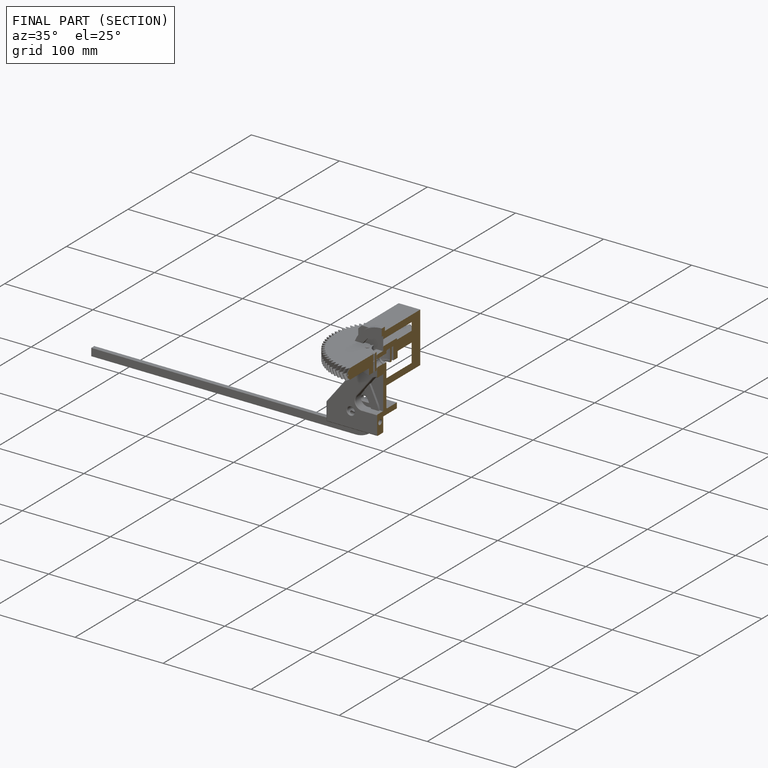
[diagram: finished part — half-section view (interior)]
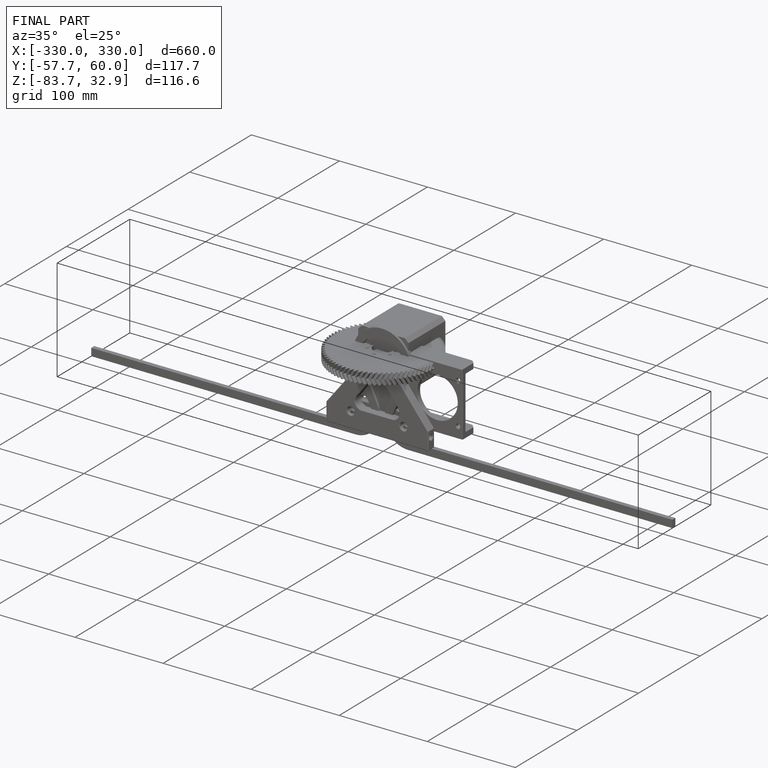
[diagram: finished part — iso view with bounding-box wireframe]
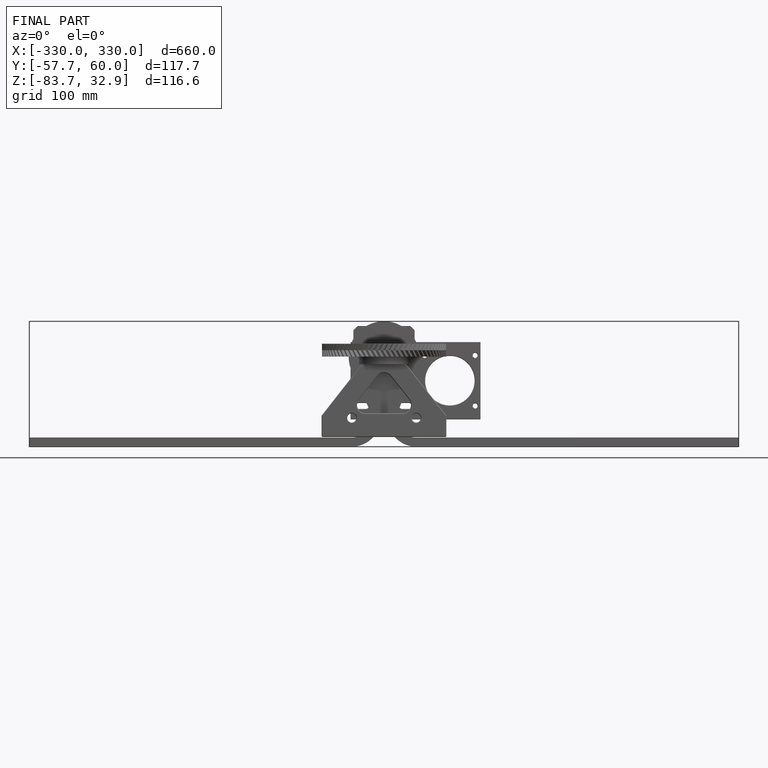
[diagram: finished part — front view with bounding-box wireframe]
